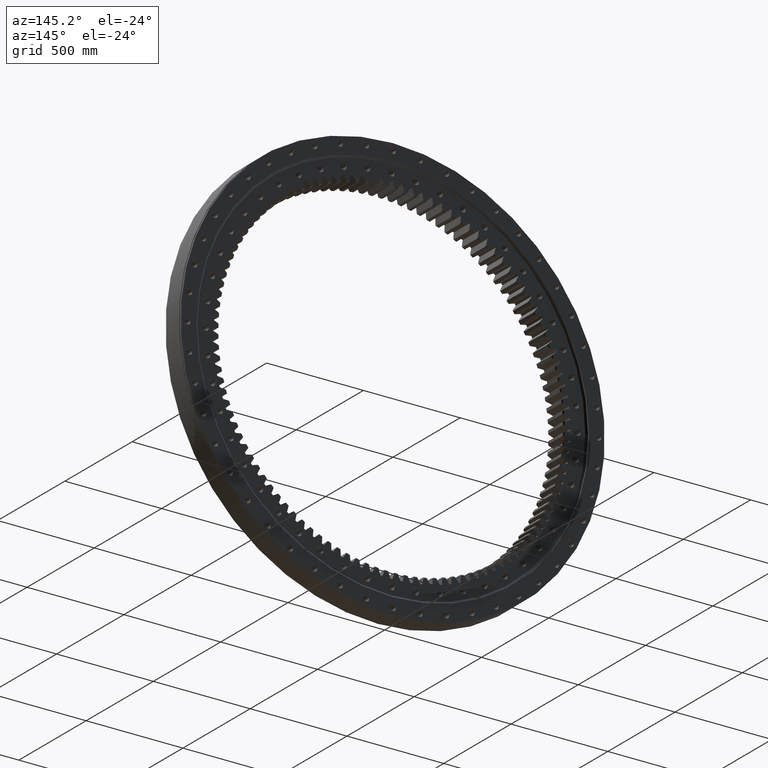
[diagram: clean part render]
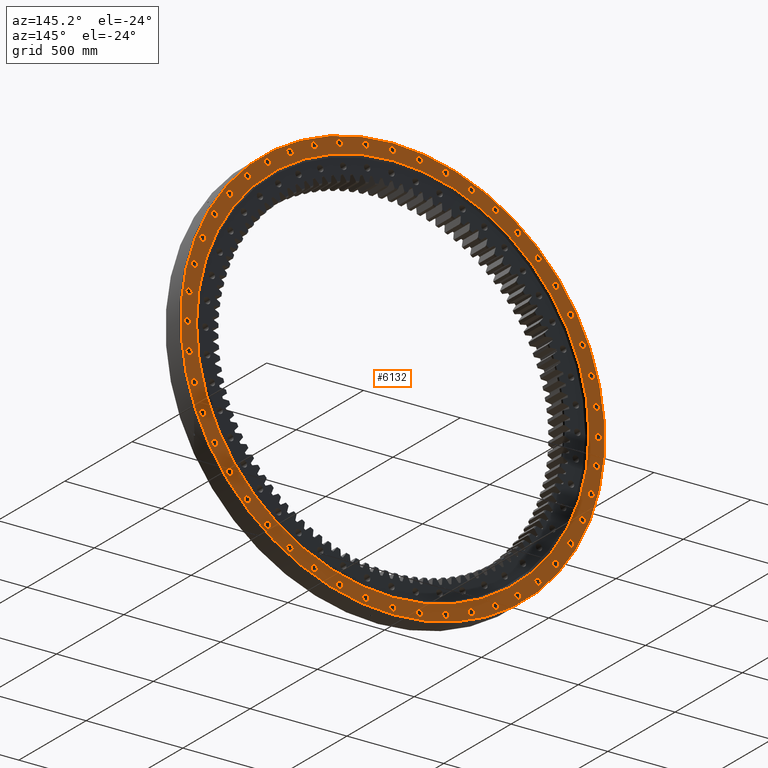
[diagram: same view with one face highlighted and labeled with its STEP entity id]
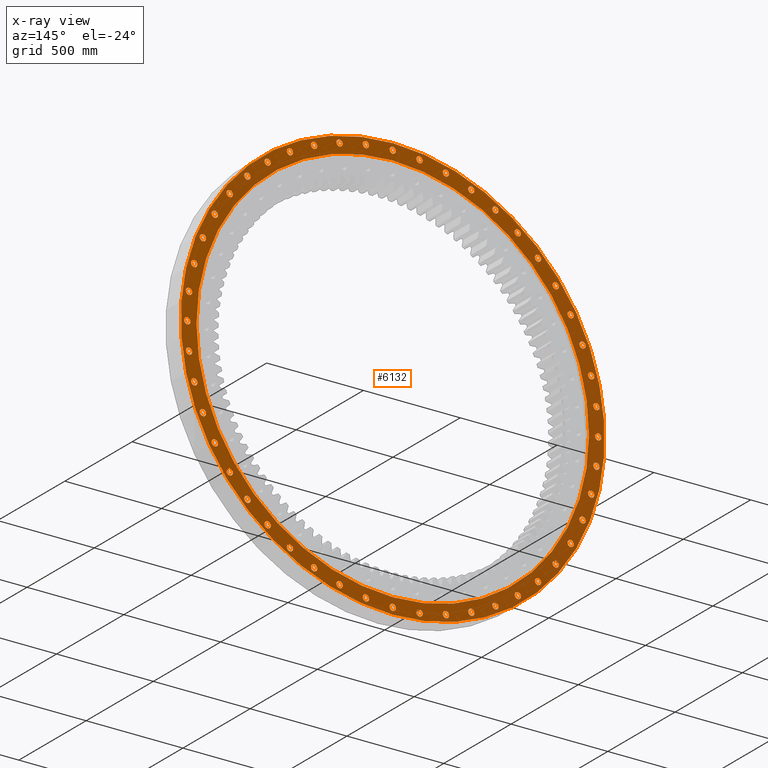
[diagram: x-ray of the same camera — body ghosted, the highlighted face saturated]
A machine part, auxiliary view. The second image highlights one B-rep face of the part: STEP entity #6132.
The next image is the same camera in x-ray: the body ghosted, the highlighted face saturated — about 0% of this face is hidden behind the body in this view.
In plain terms, the highlighted planar face has unit normal (0, -1, -0).
Its self-contained STEP definition (entity closure, byte-faithful):
#36 = EDGE_CURVE ( 'NONE', #1104, #12751, #7605, .T. ) ;
#61 = CIRCLE ( 'NONE', #30496, 16.49999999999995400 ) ;
#69 = CARTESIAN_POINT ( 'NONE',  ( 530.7500000000081900, 60.00000000000021300, -919.2859661171770500 ) ) ;
#79 = EDGE_LOOP ( 'NONE', ( #30530, #2870 ) ) ;
#123 = CIRCLE ( 'NONE', #31068, 16.49999999999996100 ) ;
#130 = FACE_BOUND ( 'NONE', #5895, .T. ) ;
#149 = DIRECTION ( 'NONE',  ( -1.173697223544192200E-016, 1.000000000000000000, 3.494217355385783800E-017 ) ) ;
#171 = DIRECTION ( 'NONE',  ( 1.173697223544192200E-016, -1.000000000000000000, -3.494217355385783800E-017 ) ) ;
#231 = CIRCLE ( 'NONE', #15740, 16.49999999999989700 ) ;
#235 = AXIS2_PLACEMENT_3D ( 'NONE', #22533, #7085, #25104 ) ;
#241 = CARTESIAN_POINT ( 'NONE',  ( -1035.918720348300200, 59.99999999999998600, 138.5535530415813200 ) ) ;
#364 = VERTEX_POINT ( 'NONE', #15655 ) ;
#380 = CARTESIAN_POINT ( 'NONE',  ( -919.2859661171833100, 59.99999999999998600, 530.7499999999973900 ) ) ;
#427 = CARTESIAN_POINT ( 'NONE',  ( 646.2002568927459800, 60.00000000000016300, 858.6445707191546700 ) ) ;
#465 = ORIENTED_EDGE ( 'NONE', *, *, #27472, .T. ) ;
#493 = VERTEX_POINT ( 'NONE', #29035 ) ;
#498 = FACE_BOUND ( 'NONE', #17326, .T. ) ;
#543 = VERTEX_POINT ( 'NONE', #16426 ) ;
#547 = CARTESIAN_POINT ( 'NONE',  ( -1.540705678021927400E-011, 60.00000000000007800, 1078.000000000000000 ) ) ;
#563 = EDGE_LOOP ( 'NONE', ( #847, #24693 ) ) ;
#572 = AXIS2_PLACEMENT_3D ( 'NONE', #3107, #21141, #5707 ) ;
#576 = DIRECTION ( 'NONE',  ( 1.173697223544192200E-016, -1.000000000000000000, -3.494217355385783800E-017 ) ) ;
#610 = CIRCLE ( 'NONE', #26390, 16.49999999999997500 ) ;
#620 = VERTEX_POINT ( 'NONE', #14071 ) ;
#626 = CIRCLE ( 'NONE', #18332, 16.50000000000004300 ) ;
#635 = CARTESIAN_POINT ( 'NONE',  ( -1025.330264605847100, 59.99999999999999300, 274.7364163763222700 ) ) ;
#725 = ORIENTED_EDGE ( 'NONE', *, *, #9000, .T. ) ;
#770 = EDGE_LOOP ( 'NONE', ( #32731, #3829 ) ) ;
#784 = DIRECTION ( 'NONE',  ( -0.3826834323650771800, 0.0000000000000000000, 0.9238795325112920700 ) ) ;
#806 = AXIS2_PLACEMENT_3D ( 'NONE', #20999, #5573, #23583 ) ;
#824 = CARTESIAN_POINT ( 'NONE',  ( -997.1981237607324100, 59.99999999999998600, 406.2184634555392800 ) ) ;
#847 = ORIENTED_EDGE ( 'NONE', *, *, #10111, .T. ) ;
#866 = CARTESIAN_POINT ( 'NONE',  ( 7.981473465168087100E-012, 60.00000000000014900, -1061.500000000000000 ) ) ;
#883 = CARTESIAN_POINT ( 'NONE',  ( 138.5535530415698100, 60.00000000000009200, 1068.918720348301800 ) ) ;
#965 = CIRCLE ( 'NONE', #15601, 16.49999999999995400 ) ;
#980 = DIRECTION ( 'NONE',  ( -0.2588190451025291800, 0.0000000000000000000, -0.9659258262890660900 ) ) ;
#984 = EDGE_LOOP ( 'NONE', ( #3131, #19427 ) ) ;
#1001 = CIRCLE ( 'NONE', #6512, 16.49999999999990400 ) ;
#1014 = ORIENTED_EDGE ( 'NONE', *, *, #30946, .T. ) ;
#1027 = AXIS2_PLACEMENT_3D ( 'NONE', #18228, #2802, #20837 ) ;
#1029 = AXIS2_PLACEMENT_3D ( 'NONE', #29102, #13689, #31707 ) ;
#1059 = DIRECTION ( 'NONE',  ( 1.173697223544192200E-016, -1.000000000000000000, -3.494217355385783800E-017 ) ) ;
#1104 = VERTEX_POINT ( 'NONE', #17360 ) ;
#1108 = CARTESIAN_POINT ( 'NONE',  ( 406.2184634555296200, 60.00000000000012800, 980.6981237607367300 ) ) ;
#1154 = CIRCLE ( 'NONE', #5538, 16.49999999999995400 ) ;
#1222 = CARTESIAN_POINT ( 'NONE',  ( 530.7499999999877200, 60.00000000000014200, 935.7859661171887600 ) ) ;
#1223 = VERTEX_POINT ( 'NONE', #5289 ) ;
#1233 = VERTEX_POINT ( 'NONE', #26028 ) ;
#1251 = VERTEX_POINT ( 'NONE', #2919 ) ;
#1256 = DIRECTION ( 'NONE',  ( 1.173697223544192200E-016, -1.000000000000000000, -3.494217355385783800E-017 ) ) ;
#1261 = AXIS2_PLACEMENT_3D ( 'NONE', #23405, #7979, #26007 ) ;
#1276 = DIRECTION ( 'NONE',  ( 0.3826834323650852900, 0.0000000000000000000, -0.9238795325112887400 ) ) ;
#1305 = FACE_BOUND ( 'NONE', #770, .T. ) ;
#1394 = ORIENTED_EDGE ( 'NONE', *, *, #32383, .T. ) ;
#1395 = CARTESIAN_POINT ( 'NONE',  ( -530.7499999999942000, 60.00000000000008500, -902.7859661171852400 ) ) ;
#1416 = ORIENTED_EDGE ( 'NONE', *, *, #20186, .T. ) ;
#1418 = CARTESIAN_POINT ( 'NONE',  ( 1052.418720348301300, 60.00000000000024900, -138.5535530415734800 ) ) ;
#1425 = ORIENTED_EDGE ( 'NONE', *, *, #9822, .T. ) ;
#1426 = DIRECTION ( 'NONE',  ( 1.173697223544192200E-016, -1.000000000000000000, -3.494217355385783800E-017 ) ) ;
#1458 = DIRECTION ( 'NONE',  ( 0.2588190451025166300, 0.0000000000000000000, -0.9659258262890693100 ) ) ;
#1469 = AXIS2_PLACEMENT_3D ( 'NONE', #3937, #21962, #6525 ) ;
#1555 = CIRCLE ( 'NONE', #3157, 16.49999999999995700 ) ;
#1608 = DIRECTION ( 'NONE',  ( 0.1305261922200450800, 0.0000000000000000000, -0.9914448613738111600 ) ) ;
#1644 = CIRCLE ( 'NONE', #20045, 16.49999999999995400 ) ;
#1654 = CIRCLE ( 'NONE', #806, 16.49999999999997200 ) ;
#1667 = AXIS2_PLACEMENT_3D ( 'NONE', #9659, #27690, #12256 ) ;
#1734 = ORIENTED_EDGE ( 'NONE', *, *, #13941, .T. ) ;
#1791 = CIRCLE ( 'NONE', #14117, 16.49999999999999300 ) ;
#1825 = EDGE_CURVE ( 'NONE', #15348, #26520, #1901, .T. ) ;
#1868 = CARTESIAN_POINT ( 'NONE',  ( 842.1445707191380700, 60.00000000000019200, 646.2002568927674700 ) ) ;
#1882 = CARTESIAN_POINT ( 'NONE',  ( 842.1445707191525100, 60.00000000000023400, -646.2002568927489400 ) ) ;
#1901 = CIRCLE ( 'NONE', #21313, 16.49999999999987200 ) ;
#1910 = AXIS2_PLACEMENT_3D ( 'NONE', #11890, #29892, #14487 ) ;
#1916 = DIRECTION ( 'NONE',  ( 1.173697223544192200E-016, -1.000000000000000000, -3.494217355385783800E-017 ) ) ;
#1969 = AXIS2_PLACEMENT_3D ( 'NONE', #16702, #1256, #19286 ) ;
#1976 = DIRECTION ( 'NONE',  ( -0.5000000000000053300, 0.0000000000000000000, -0.8660254037844357100 ) ) ;
#2128 = VERTEX_POINT ( 'NONE', #28063 ) ;
#2134 = FACE_BOUND ( 'NONE', #5083, .T. ) ;
#2139 = VERTEX_POINT ( 'NONE', #20401 ) ;
#2188 = DIRECTION ( 'NONE',  ( 1.173697223544192200E-016, -1.000000000000000000, -3.494217355385783800E-017 ) ) ;
#2196 = EDGE_CURVE ( 'NONE', #28026, #18959, #7546, .T. ) ;
#2373 = DIRECTION ( 'NONE',  ( 1.173697223544192200E-016, -1.000000000000000000, -3.494217355385783800E-017 ) ) ;
#2397 = CARTESIAN_POINT ( 'NONE',  ( -138.5535530415861300, 60.00000000000006400, 1035.918720348299800 ) ) ;
#2555 = VERTEX_POINT ( 'NONE', #3739 ) ;
#2580 = CARTESIAN_POINT ( 'NONE',  ( -406.2184634555437700, 60.00000000000003600, 997.1981237607306000 ) ) ;
#2582 = VERTEX_POINT ( 'NONE', #24477 ) ;
#2609 = EDGE_LOOP ( 'NONE', ( #28299, #27328 ) ) ;
#2610 = CARTESIAN_POINT ( 'NONE',  ( -274.7364163763269900, 60.00000000000005000, 1025.330264605845700 ) ) ;
#2658 = DIRECTION ( 'NONE',  ( 0.4999999999999922300, 0.0000000000000000000, -0.8660254037844431500 ) ) ;
#2662 = CIRCLE ( 'NONE', #13216, 16.49999999999999600 ) ;
#2695 = EDGE_CURVE ( 'NONE', #18959, #28026, #13539, .T. ) ;
#2737 = EDGE_LOOP ( 'NONE', ( #24352, #3592 ) ) ;
#2738 = CARTESIAN_POINT ( 'NONE',  ( -1.540445398069900600E-011, 60.00000000000007800, 1045.000000000000200 ) ) ;
#2741 = EDGE_CURVE ( 'NONE', #19180, #27418, #5874, .T. ) ;
#2748 = CIRCLE ( 'NONE', #30799, 16.49999999999999300 ) ;
#2802 = DIRECTION ( 'NONE',  ( 1.173697223544192200E-016, -1.000000000000000000, -3.494217355385783800E-017 ) ) ;
#2843 = DIRECTION ( 'NONE',  ( 1.173697223544192200E-016, -1.000000000000000000, -3.494217355385783800E-017 ) ) ;
#2870 = ORIENTED_EDGE ( 'NONE', *, *, #21987, .T. ) ;
#2919 = CARTESIAN_POINT ( 'NONE',  ( -646.2002568927591700, 60.00000000000001400, 825.6445707191445500 ) ) ;
#2921 = FACE_BOUND ( 'NONE', #17126, .T. ) ;
#2922 = EDGE_CURVE ( 'NONE', #9749, #1233, #20780, .T. ) ;
#2930 = CARTESIAN_POINT ( 'NONE',  ( 646.2002568927645100, 60.00000000000022000, -825.6445707191403500 ) ) ;
#2932 = CARTESIAN_POINT ( 'NONE',  ( 530.7500000000081900, 60.00000000000021300, -902.7859661171770500 ) ) ;
#2977 = DIRECTION ( 'NONE',  ( -0.8660254037844310500, 0.0000000000000000000, 0.5000000000000132100 ) ) ;
#2982 = VERTEX_POINT ( 'NONE', #23530 ) ;
#2985 = CARTESIAN_POINT ( 'NONE',  ( 530.7499999999877200, 60.00000000000014200, 919.2859661171888800 ) ) ;
#3042 = ORIENTED_EDGE ( 'NONE', *, *, #25823, .T. ) ;
#3107 = CARTESIAN_POINT ( 'NONE',  ( -842.1445707191422800, 60.00000000000004300, -646.2002568927620100 ) ) ;
#3131 = ORIENTED_EDGE ( 'NONE', *, *, #21772, .T. ) ;
#3146 = AXIS2_PLACEMENT_3D ( 'NONE', #10066, #28076, #12651 ) ;
#3157 = AXIS2_PLACEMENT_3D ( 'NONE', #19213, #3793, #21822 ) ;
#3162 = ORIENTED_EDGE ( 'NONE', *, *, #12030, .T. ) ;
#3219 = DIRECTION ( 'NONE',  ( -0.9659258262890652000, 0.0000000000000000000, 0.2588190451025323400 ) ) ;
#3221 = CARTESIAN_POINT ( 'NONE',  ( 138.5535530415930100, 60.00000000000016300, -1052.418720348298800 ) ) ;
#3294 = CARTESIAN_POINT ( 'NONE',  ( 138.5535530415930100, 60.00000000000016300, -1035.918720348298800 ) ) ;
#3309 = CARTESIAN_POINT ( 'NONE',  ( 825.6445707191525100, 60.00000000000023400, -646.2002568927489400 ) ) ;
#3323 = VERTEX_POINT ( 'NONE', #19387 ) ;
#3328 = ORIENTED_EDGE ( 'NONE', *, *, #24713, .T. ) ;
#3335 = EDGE_CURVE ( 'NONE', #21991, #3340, #22383, .T. ) ;
#3340 = VERTEX_POINT ( 'NONE', #27300 ) ;
#3346 = CARTESIAN_POINT ( 'NONE',  ( -1052.418720348299300, 60.00000000000000000, -138.5535530415898200 ) ) ;
#3391 = AXIS2_PLACEMENT_3D ( 'NONE', #32855, #17397, #1976 ) ;
#3429 = CARTESIAN_POINT ( 'NONE',  ( -964.1981237607292300, 60.00000000000001400, -406.2184634555472400 ) ) ;
#3433 = ORIENTED_EDGE ( 'NONE', *, *, #31080, .T. ) ;
#3466 = CARTESIAN_POINT ( 'NONE',  ( 902.7859661171752400, 60.00000000000020600, 530.7500000000113700 ) ) ;
#3468 = DIRECTION ( 'NONE',  ( -7.038473828917508000E-015, 0.0000000000000000000, -1.000000000000000000 ) ) ;
#3525 = VERTEX_POINT ( 'NONE', #33231 ) ;
#3593 = VERTEX_POINT ( 'NONE', #31071 ) ;
#3592 = ORIENTED_EDGE ( 'NONE', *, *, #13834, .T. ) ;
#3599 = AXIS2_PLACEMENT_3D ( 'NONE', #6362, #24389, #8960 ) ;
#3610 = EDGE_CURVE ( 'NONE', #14457, #24357, #10665, .T. ) ;
#3631 = EDGE_LOOP ( 'NONE', ( #17427, #22513 ) ) ;
#3640 = DIRECTION ( 'NONE',  ( 1.173697223544192200E-016, -1.000000000000000000, -3.494217355385783800E-017 ) ) ;
#3650 = CIRCLE ( 'NONE', #15019, 16.49999999999996400 ) ;
#3702 = DIRECTION ( 'NONE',  ( 0.3826834323650910600, 0.0000000000000000000, 0.9238795325112864100 ) ) ;
#3739 = CARTESIAN_POINT ( 'NONE',  ( 997.1981237607352600, 60.00000000000024900, -406.2184634555329700 ) ) ;
#3740 = FACE_BOUND ( 'NONE', #25571, .T. ) ;
#3757 = EDGE_CURVE ( 'NONE', #22888, #22343, #32415, .T. ) ;
#3793 = DIRECTION ( 'NONE',  ( 1.173697223544192200E-016, -1.000000000000000000, -3.494217355385783800E-017 ) ) ;
#3829 = ORIENTED_EDGE ( 'NONE', *, *, #26847, .T. ) ;
#3846 = AXIS2_PLACEMENT_3D ( 'NONE', #20843, #5394, #23412 ) ;
#3869 = DIRECTION ( 'NONE',  ( 1.173697223544192200E-016, -1.000000000000000000, -3.494217355385783800E-017 ) ) ;
#3896 = EDGE_LOOP ( 'NONE', ( #27609, #4798 ) ) ;
#3937 = CARTESIAN_POINT ( 'NONE',  ( -274.7364163763269900, 60.00000000000005000, 1025.330264605845700 ) ) ;
#4038 = DIRECTION ( 'NONE',  ( 0.9914448613738097200, 0.0000000000000000000, -0.1305261922200566800 ) ) ;
#4053 = CARTESIAN_POINT ( 'NONE',  ( -274.7364163763269900, 60.00000000000005000, 1008.830264605845700 ) ) ;
#4060 = AXIS2_PLACEMENT_3D ( 'NONE', #27749, #12324, #30321 ) ;
#4076 = DIRECTION ( 'NONE',  ( 1.173697223544192200E-016, -1.000000000000000000, -3.494217355385783800E-017 ) ) ;
#4081 = AXIS2_PLACEMENT_3D ( 'NONE', #9020, #27051, #11625 ) ;
#4136 = VERTEX_POINT ( 'NONE', #10987 ) ;
#4138 = ORIENTED_EDGE ( 'NONE', *, *, #19856, .T. ) ;
#4166 = VERTEX_POINT ( 'NONE', #824 ) ;
#4215 = EDGE_CURVE ( 'NONE', #18355, #2555, #13436, .T. ) ;
#4227 = ORIENTED_EDGE ( 'NONE', *, *, #30095, .T. ) ;
#4356 = DIRECTION ( 'NONE',  ( 1.173697223544192200E-016, -1.000000000000000000, -3.494217355385783800E-017 ) ) ;
#4415 = EDGE_CURVE ( 'NONE', #32686, #9763, #123, .T. ) ;
#4435 = CARTESIAN_POINT ( 'NONE',  ( -1.540797271421458900E-011, 60.00000000000007800, 1061.500000000000000 ) ) ;
#4451 = CARTESIAN_POINT ( 'NONE',  ( 138.5535530415698100, 60.00000000000009200, 1052.418720348301800 ) ) ;
#4480 = DIRECTION ( 'NONE',  ( 0.7933533402912386100, 0.0000000000000000000, 0.6087614290087161000 ) ) ;
#4492 = DIRECTION ( 'NONE',  ( 0.7933533402912329400, 0.0000000000000000000, -0.6087614290087235400 ) ) ;
#4512 = AXIS2_PLACEMENT_3D ( 'NONE', #19064, #3640, #21681 ) ;
#4546 = CARTESIAN_POINT ( 'NONE',  ( 919.2859661171751200, 60.00000000000020600, 530.7500000000113700 ) ) ;
#4586 = FACE_BOUND ( 'NONE', #24259, .T. ) ;
#4624 = DIRECTION ( 'NONE',  ( 1.173697223544192200E-016, -1.000000000000000000, -3.494217355385783800E-017 ) ) ;
#4629 = EDGE_LOOP ( 'NONE', ( #30880, #16654 ) ) ;
#4640 = EDGE_CURVE ( 'NONE', #2128, #7275, #21885, .T. ) ;
#4670 = CARTESIAN_POINT ( 'NONE',  ( -734.0938482295159700, 60.00000000000005700, -750.5938482295246100 ) ) ;
#4752 = AXIS2_PLACEMENT_3D ( 'NONE', #16025, #576, #18592 ) ;
#4768 = EDGE_CURVE ( 'NONE', #3323, #27220, #18617, .T. ) ;
#4774 = CARTESIAN_POINT ( 'NONE',  ( -980.6981237607292300, 60.00000000000001400, -406.2184634555472400 ) ) ;
#4798 = ORIENTED_EDGE ( 'NONE', *, *, #10624, .T. ) ;
#4825 = VERTEX_POINT ( 'NONE', #18468 ) ;
#4960 = CIRCLE ( 'NONE', #9595, 16.50000000000003200 ) ;
#5047 = CIRCLE ( 'NONE', #17057, 16.49999999999996100 ) ;
#5083 = EDGE_LOOP ( 'NONE', ( #20021, #18229 ) ) ;
#5122 = CIRCLE ( 'NONE', #23751, 16.50000000000000700 ) ;
#5134 = CARTESIAN_POINT ( 'NONE',  ( -530.7499999999942000, 60.00000000000008500, -935.7859661171851300 ) ) ;
#5189 = CIRCLE ( 'NONE', #25080, 16.49999999999996100 ) ;
#5201 = DIRECTION ( 'NONE',  ( -0.2588190451025103600, 0.0000000000000000000, 0.9659258262890709800 ) ) ;
#5202 = VERTEX_POINT ( 'NONE', #3466 ) ;
#5289 = CARTESIAN_POINT ( 'NONE',  ( -750.5938482295220000, 60.00000000000000000, 767.0938482295184700 ) ) ;
#5346 = FACE_BOUND ( 'NONE', #13047, .T. ) ;
#5370 = EDGE_CURVE ( 'NONE', #25206, #15485, #32424, .T. ) ;
#5394 = DIRECTION ( 'NONE',  ( 1.173697223544192200E-016, -1.000000000000000000, -3.494217355385783800E-017 ) ) ;
#5395 = DIRECTION ( 'NONE',  ( 1.173697223544192200E-016, -1.000000000000000000, -3.494217355385783800E-017 ) ) ;
#5429 = VERTEX_POINT ( 'NONE', #5134 ) ;
#5538 = AXIS2_PLACEMENT_3D ( 'NONE', #10145, #28161, #12738 ) ;
#5556 = AXIS2_PLACEMENT_3D ( 'NONE', #1108, #19125, #3702 ) ;
#5557 = CIRCLE ( 'NONE', #3599, 1095.000000000000000 ) ;
#5565 = CIRCLE ( 'NONE', #10173, 16.49999999999990400 ) ;
#5573 = DIRECTION ( 'NONE',  ( 1.173697223544192200E-016, -1.000000000000000000, -3.494217355385783800E-017 ) ) ;
#5587 = DIRECTION ( 'NONE',  ( 0.5000000000000001100, 0.0000000000000000000, 0.8660254037844384900 ) ) ;
#5649 = CARTESIAN_POINT ( 'NONE',  ( -274.7364163763186900, 60.00000000000011400, -1025.330264605848000 ) ) ;
#5659 = CIRCLE ( 'NONE', #15044, 16.49999999999996800 ) ;
#5665 = CIRCLE ( 'NONE', #1469, 16.49999999999989000 ) ;
#5666 = AXIS2_PLACEMENT_3D ( 'NONE', #17609, #2188, #20215 ) ;
#5702 = CARTESIAN_POINT ( 'NONE',  ( -1041.830264605844800, 60.00000000000000700, -274.7364163763305700 ) ) ;
#5707 = DIRECTION ( 'NONE',  ( -0.7933533402912386100, 0.0000000000000000000, -0.6087614290087161000 ) ) ;
#5729 = EDGE_CURVE ( 'NONE', #33136, #25779, #23509, .T. ) ;
#5738 = CARTESIAN_POINT ( 'NONE',  ( 1035.918720348298200, 60.00000000000023400, 138.5535530415966700 ) ) ;
#5750 = FACE_BOUND ( 'NONE', #26832, .T. ) ;
#5826 = CARTESIAN_POINT ( 'NONE',  ( 750.5938482295272300, 60.00000000000023400, -750.5938482295133600 ) ) ;
#5833 = DIRECTION ( 'NONE',  ( 0.1305261922200450800, 0.0000000000000000000, -0.9914448613738111600 ) ) ;
#5874 = CIRCLE ( 'NONE', #6669, 1013.698750000000100 ) ;
#5895 = EDGE_LOOP ( 'NONE', ( #1734, #17400 ) ) ;
#5899 = CARTESIAN_POINT ( 'NONE',  ( 1025.330264605849200, 60.00000000000024200, -274.7364163763151600 ) ) ;
#5912 = AXIS2_PLACEMENT_3D ( 'NONE', #19779, #4356, #22384 ) ;
#5953 = DIRECTION ( 'NONE',  ( -0.9914448613738113800, 0.0000000000000000000, -0.1305261922200434400 ) ) ;
#5955 = CIRCLE ( 'NONE', #1029, 16.49999999999993200 ) ;
#5956 = DIRECTION ( 'NONE',  ( 1.173697223544192200E-016, -1.000000000000000000, -3.494217355385783800E-017 ) ) ;
#5961 = CIRCLE ( 'NONE', #19892, 16.49999999999991100 ) ;
#6028 = EDGE_CURVE ( 'NONE', #21557, #24960, #29142, .T. ) ;
#6068 = CARTESIAN_POINT ( 'NONE',  ( 1061.500000000000000, 60.00000000000024200, 1.169681962010457000E-011 ) ) ;
#6104 = ORIENTED_EDGE ( 'NONE', *, *, #6149, .T. ) ;
#6126 = ORIENTED_EDGE ( 'NONE', *, *, #2922, .T. ) ;
#6132 = ADVANCED_FACE ( 'NONE', ( #25924, #19891, #13023, #130, #19051, #12246, #5346, #31968, #25130, #18244, #11426, #4586, #31143, #24303, #17443, #10606, #3740, #30356, #23481, #16637, #9812, #2921, #29534, #22714, #15834, #8994, #2134, #28733, #21890, #15056, #8158, #1305, #27931, #21071, #14236, #7392, #498, #27134, #20278, #13408, #6570, #33166, #26307, #19459, #12619, #5750, #32359, #25520, #18624, #11816 ), #25246, .F. ) ;
#6149 = EDGE_CURVE ( 'NONE', #30111, #11380, #24707, .T. ) ;
#6295 = CARTESIAN_POINT ( 'NONE',  ( -1045.000000000000200, 59.99999999999999300, -4.283049430454910900E-012 ) ) ;
#6343 = CARTESIAN_POINT ( 'NONE',  ( 274.7364163763115800, 60.00000000000011400, 1008.830264605850100 ) ) ;
#6362 = CARTESIAN_POINT ( 'NONE',  ( -7.042183341265165400E-015, 60.00000000000010700, 2.037406404450202600E-015 ) ) ;
#6370 = CARTESIAN_POINT ( 'NONE',  ( 274.7364163763115800, 60.00000000000011400, 1025.330264605850100 ) ) ;
#6511 = AXIS2_PLACEMENT_3D ( 'NONE', #9601, #27630, #12196 ) ;
#6512 = AXIS2_PLACEMENT_3D ( 'NONE', #12870, #30877, #15471 ) ;
#6519 = VERTEX_POINT ( 'NONE', #883 ) ;
#6525 = DIRECTION ( 'NONE',  ( -0.2588190451025103600, 0.0000000000000000000, 0.9659258262890709800 ) ) ;
#6570 = FACE_BOUND ( 'NONE', #9701, .T. ) ;
#6669 = AXIS2_PLACEMENT_3D ( 'NONE', #9834, #27846, #12436 ) ;
#6699 = DIRECTION ( 'NONE',  ( 1.173697223544192200E-016, -1.000000000000000000, -3.494217355385783800E-017 ) ) ;
#6719 = AXIS2_PLACEMENT_3D ( 'NONE', #25904, #10479, #28497 ) ;
#6729 = ORIENTED_EDGE ( 'NONE', *, *, #8264, .T. ) ;
#6762 = EDGE_CURVE ( 'NONE', #620, #12163, #10962, .T. ) ;
#6793 = EDGE_LOOP ( 'NONE', ( #465, #12010 ) ) ;
#6797 = CARTESIAN_POINT ( 'NONE',  ( 1068.918720348298200, 60.00000000000023400, 138.5535530415966700 ) ) ;
#6873 = CARTESIAN_POINT ( 'NONE',  ( 750.5938482295272300, 60.00000000000023400, -750.5938482295133600 ) ) ;
#6898 = AXIS2_PLACEMENT_3D ( 'NONE', #13045, #31052, #15642 ) ;
#6974 = EDGE_CURVE ( 'NONE', #14726, #4166, #61, .T. ) ;
#7018 = DIRECTION ( 'NONE',  ( 5.551115123128398300E-017, 0.0000000000000000000, 1.000000000000000000 ) ) ;
#7030 = DIRECTION ( 'NONE',  ( 0.1305261922200533800, 0.0000000000000000000, 0.9914448613738101600 ) ) ;
#7033 = DIRECTION ( 'NONE',  ( 1.173697223544192200E-016, -1.000000000000000000, -3.494217355385783800E-017 ) ) ;
#7041 = CARTESIAN_POINT ( 'NONE',  ( 1025.330264605849200, 60.00000000000024200, -274.7364163763151600 ) ) ;
#7053 = VERTEX_POINT ( 'NONE', #19760 ) ;
#7085 = DIRECTION ( 'NONE',  ( 1.173697223544192200E-016, -1.000000000000000000, -3.494217355385783800E-017 ) ) ;
#7100 = DIRECTION ( 'NONE',  ( 1.173697223544192200E-016, -1.000000000000000000, -3.494217355385783800E-017 ) ) ;
#7112 = AXIS2_PLACEMENT_3D ( 'NONE', #22487, #7033, #25054 ) ;
#7133 = DIRECTION ( 'NONE',  ( 0.8660254037844384900, 0.0000000000000000000, 0.5000000000000001100 ) ) ;
#7266 = CARTESIAN_POINT ( 'NONE',  ( 646.2002568927645100, 60.00000000000022000, -842.1445707191402300 ) ) ;
#7270 = CARTESIAN_POINT ( 'NONE',  ( 1041.830264605849200, 60.00000000000024200, -274.7364163763151600 ) ) ;
#7275 = VERTEX_POINT ( 'NONE', #2930 ) ;
#7355 = CARTESIAN_POINT ( 'NONE',  ( 1035.918720348301300, 60.00000000000024900, -138.5535530415734800 ) ) ;
#7364 = DIRECTION ( 'NONE',  ( -0.9238795325112899600, 0.0000000000000000000, -0.3826834323650824000 ) ) ;
#7369 = ORIENTED_EDGE ( 'NONE', *, *, #17228, .T. ) ;
#7392 = FACE_BOUND ( 'NONE', #15730, .T. ) ;
#7404 = ORIENTED_EDGE ( 'NONE', *, *, #12233, .T. ) ;
#7448 = DIRECTION ( 'NONE',  ( 1.173697223544192200E-016, -1.000000000000000000, -3.494217355385783800E-017 ) ) ;
#7508 = EDGE_CURVE ( 'NONE', #31255, #19832, #29870, .T. ) ;
#7546 = CIRCLE ( 'NONE', #1027, 16.49999999999995700 ) ;
#7591 = CIRCLE ( 'NONE', #32978, 16.50000000000003900 ) ;
#7605 = CIRCLE ( 'NONE', #23660, 16.49999999999996100 ) ;
#7617 = AXIS2_PLACEMENT_3D ( 'NONE', #3221, #21263, #5833 ) ;
#7665 = CIRCLE ( 'NONE', #6898, 16.49999999999999300 ) ;
#7708 = CIRCLE ( 'NONE', #25992, 16.49999999999995700 ) ;
#7768 = ORIENTED_EDGE ( 'NONE', *, *, #10411, .T. ) ;
#7817 = CARTESIAN_POINT ( 'NONE',  ( 964.1981237607353700, 60.00000000000024900, -406.2184634555329700 ) ) ;
#7836 = AXIS2_PLACEMENT_3D ( 'NONE', #11421, #29428, #14007 ) ;
#7880 = ORIENTED_EDGE ( 'NONE', *, *, #14615, .T. ) ;
#7893 = EDGE_CURVE ( 'NONE', #21522, #3593, #32267, .T. ) ;
#7929 = CIRCLE ( 'NONE', #22452, 16.49999999999986900 ) ;
#7979 = DIRECTION ( 'NONE',  ( 1.173697223544192200E-016, -1.000000000000000000, -3.494217355385783800E-017 ) ) ;
#8060 = AXIS2_PLACEMENT_3D ( 'NONE', #16869, #1426, #19461 ) ;
#8098 = CIRCLE ( 'NONE', #5912, 16.49999999999996400 ) ;
#8158 = FACE_BOUND ( 'NONE', #3631, .T. ) ;
#8168 = AXIS2_PLACEMENT_3D ( 'NONE', #15189, #33187, #17749 ) ;
#8203 = DIRECTION ( 'NONE',  ( 1.173697223544192200E-016, -1.000000000000000000, -3.494217355385783800E-017 ) ) ;
#8229 = DIRECTION ( 'NONE',  ( -0.2588190451025291800, 0.0000000000000000000, -0.9659258262890660900 ) ) ;
#8242 = ORIENTED_EDGE ( 'NONE', *, *, #8565, .T. ) ;
#8264 = EDGE_CURVE ( 'NONE', #13236, #22858, #9688, .T. ) ;
#8322 = VERTEX_POINT ( 'NONE', #1395 ) ;
#8388 = DIRECTION ( 'NONE',  ( 1.173697223544192200E-016, -1.000000000000000000, -3.494217355385783800E-017 ) ) ;
#8407 = CIRCLE ( 'NONE', #21157, 16.49999999999998600 ) ;
#8414 = DIRECTION ( 'NONE',  ( 0.7071067811865441300, 0.0000000000000000000, -0.7071067811865507900 ) ) ;
#8484 = DIRECTION ( 'NONE',  ( 0.9659258262890668700, 0.0000000000000000000, -0.2588190451025260700 ) ) ;
#8501 = CIRCLE ( 'NONE', #17351, 16.49999999999991800 ) ;
#8506 = EDGE_LOOP ( 'NONE', ( #22219, #8662 ) ) ;
#8528 = AXIS2_PLACEMENT_3D ( 'NONE', #32172, #16726, #1276 ) ;
#8553 = CARTESIAN_POINT ( 'NONE',  ( 919.2859661171871700, 60.00000000000024900, -530.7499999999909100 ) ) ;
#8565 = EDGE_CURVE ( 'NONE', #2139, #10291, #28988, .T. ) ;
#8659 = DIRECTION ( 'NONE',  ( 1.173697223544192200E-016, -1.000000000000000000, -3.494217355385783800E-017 ) ) ;
#8661 = DIRECTION ( 'NONE',  ( 1.000000000000000000, 0.0000000000000000000, -3.546992490074347800E-015 ) ) ;
#8662 = ORIENTED_EDGE ( 'NONE', *, *, #15329, .T. ) ;
#8689 = CIRCLE ( 'NONE', #13670, 16.49999999999995400 ) ;
#8759 = ORIENTED_EDGE ( 'NONE', *, *, #6762, .T. ) ;
#8775 = CIRCLE ( 'NONE', #26550, 16.49999999999989000 ) ;
#8794 = VERTEX_POINT ( 'NONE', #6343 ) ;
#8800 = CARTESIAN_POINT ( 'NONE',  ( 1041.830264605842800, 60.00000000000022700, 274.7364163763377300 ) ) ;
#8808 = EDGE_CURVE ( 'NONE', #12303, #3525, #30993, .T. ) ;
#8845 = VERTEX_POINT ( 'NONE', #29774 ) ;
#8885 = VERTEX_POINT ( 'NONE', #6797 ) ;
#8960 = DIRECTION ( 'NONE',  ( 5.551115123125782700E-017, -3.802133645976563300E-017, 1.000000000000000000 ) ) ;
#8980 = DIRECTION ( 'NONE',  ( 0.2588190451025229600, 0.0000000000000000000, 0.9659258262890676500 ) ) ;
#8994 = FACE_BOUND ( 'NONE', #30974, .T. ) ;
#9000 = EDGE_CURVE ( 'NONE', #3525, #12303, #24542, .T. ) ;
#9020 = CARTESIAN_POINT ( 'NONE',  ( -7.042183341265165400E-015, 60.00000000000010700, 2.096530413231473700E-015 ) ) ;
#9128 = DIRECTION ( 'NONE',  ( 1.173697223544192200E-016, -1.000000000000000000, -3.494217355385783800E-017 ) ) ;
#9204 = CIRCLE ( 'NONE', #30450, 16.49999999999997500 ) ;
#9237 = CIRCLE ( 'NONE', #572, 16.49999999999998600 ) ;
#9261 = EDGE_LOOP ( 'NONE', ( #4138, #13542 ) ) ;
#9358 = CARTESIAN_POINT ( 'NONE',  ( 406.2184634555510500, 60.00000000000019900, -964.1981237607275300 ) ) ;
#9482 = DIRECTION ( 'NONE',  ( 0.7071067811865441300, 0.0000000000000000000, -0.7071067811865507900 ) ) ;
#9504 = CARTESIAN_POINT ( 'NONE',  ( 1078.000000000000000, 60.00000000000024200, 1.163829424401834200E-011 ) ) ;
#9559 = EDGE_CURVE ( 'NONE', #10291, #2139, #5557, .T. ) ;
#9595 = AXIS2_PLACEMENT_3D ( 'NONE', #17799, #2373, #20398 ) ;
#9597 = CIRCLE ( 'NONE', #14485, 16.49999999999993200 ) ;
#9601 = CARTESIAN_POINT ( 'NONE',  ( -842.1445707191478500, 60.00000000000000000, 646.2002568927553100 ) ) ;
#9638 = DIRECTION ( 'NONE',  ( 0.9659258262890668700, 0.0000000000000000000, -0.2588190451025260700 ) ) ;
#9659 = CARTESIAN_POINT ( 'NONE',  ( -1061.500000000000000, 59.99999999999999300, -4.280211676914133700E-012 ) ) ;
#9688 = CIRCLE ( 'NONE', #8528, 16.49999999999997200 ) ;
#9689 = AXIS2_PLACEMENT_3D ( 'NONE', #25443, #10014, #28027 ) ;
#9701 = EDGE_LOOP ( 'NONE', ( #25428, #7369 ) ) ;
#9708 = CIRCLE ( 'NONE', #16805, 16.50000000000003200 ) ;
#9749 = VERTEX_POINT ( 'NONE', #25179 ) ;
#9763 = VERTEX_POINT ( 'NONE', #7270 ) ;
#9765 = EDGE_CURVE ( 'NONE', #2555, #18355, #7591, .T. ) ;
#9812 = FACE_BOUND ( 'NONE', #12099, .T. ) ;
#9813 = DIRECTION ( 'NONE',  ( 1.173697223544192200E-016, -1.000000000000000000, -3.494217355385783800E-017 ) ) ;
#9822 = EDGE_CURVE ( 'NONE', #4136, #30303, #32563, .T. ) ;
#9829 = EDGE_LOOP ( 'NONE', ( #725, #10207 ) ) ;
#9834 = CARTESIAN_POINT ( 'NONE',  ( -7.042183341265165400E-015, 60.00000000000010700, 2.096530413231473700E-015 ) ) ;
#9852 = DIRECTION ( 'NONE',  ( 0.6087614290087161000, 0.0000000000000000000, -0.7933533402912386100 ) ) ;
#9889 = AXIS2_PLACEMENT_3D ( 'NONE', #15373, #33377, #17946 ) ;
#9924 = DIRECTION ( 'NONE',  ( 5.551115123125782700E-017, -3.494217355385783100E-017, 1.000000000000000000 ) ) ;
#10007 = CARTESIAN_POINT ( 'NONE',  ( -825.6445707191422800, 60.00000000000004300, -646.2002568927620100 ) ) ;
#10014 = DIRECTION ( 'NONE',  ( 1.173697223544192200E-016, -1.000000000000000000, -3.494217355385783800E-017 ) ) ;
#10066 = CARTESIAN_POINT ( 'NONE',  ( -138.5535530415771500, 60.00000000000013500, -1052.418720348300900 ) ) ;
#10111 = EDGE_CURVE ( 'NONE', #12243, #364, #9237, .T. ) ;
#10145 = CARTESIAN_POINT ( 'NONE',  ( -406.2184634555363800, 60.00000000000009900, -980.6981237607337800 ) ) ;
#10173 = AXIS2_PLACEMENT_3D ( 'NONE', #25253, #9813, #27828 ) ;
#10207 = ORIENTED_EDGE ( 'NONE', *, *, #8808, .T. ) ;
#10215 = CARTESIAN_POINT ( 'NONE',  ( -138.5535530415771500, 60.00000000000013500, -1068.918720348300900 ) ) ;
#10291 = VERTEX_POINT ( 'NONE', #29695 ) ;
#10297 = VERTEX_POINT ( 'NONE', #19326 ) ;
#10331 = VERTEX_POINT ( 'NONE', #32398 ) ;
#10353 = CARTESIAN_POINT ( 'NONE',  ( 1008.830264605849200, 60.00000000000024200, -274.7364163763151600 ) ) ;
#10409 = DIRECTION ( 'NONE',  ( 1.173697223544192200E-016, -1.000000000000000000, -3.494217355385783800E-017 ) ) ;
#10411 = EDGE_CURVE ( 'NONE', #11380, #30111, #25334, .T. ) ;
#10414 = EDGE_CURVE ( 'NONE', #5429, #8322, #18435, .T. ) ;
#10479 = DIRECTION ( 'NONE',  ( 1.173697223544192200E-016, -1.000000000000000000, -3.494217355385783800E-017 ) ) ;
#10606 = FACE_BOUND ( 'NONE', #25610, .T. ) ;
#10624 = EDGE_CURVE ( 'NONE', #28158, #24194, #5955, .T. ) ;
#10661 = CARTESIAN_POINT ( 'NONE',  ( 919.2859661171871700, 60.00000000000024900, -530.7499999999909100 ) ) ;
#10665 = CIRCLE ( 'NONE', #1261, 16.49999999999995000 ) ;
#10694 = EDGE_CURVE ( 'NONE', #4825, #8794, #18040, .T. ) ;
#10716 = AXIS2_PLACEMENT_3D ( 'NONE', #19285, #3869, #21892 ) ;
#10832 = CARTESIAN_POINT ( 'NONE',  ( -919.2859661171788700, 60.00000000000002800, -530.7500000000048900 ) ) ;
#10962 = CIRCLE ( 'NONE', #11515, 16.49999999999999600 ) ;
#10987 = CARTESIAN_POINT ( 'NONE',  ( -1041.830264605847100, 59.99999999999999300, 274.7364163763222700 ) ) ;
#11157 = DIRECTION ( 'NONE',  ( 0.8660254037844357100, 0.0000000000000000000, -0.5000000000000053300 ) ) ;
#11248 = CARTESIAN_POINT ( 'NONE',  ( -1052.418720348300200, 59.99999999999998600, 138.5535530415813200 ) ) ;
#11296 = EDGE_CURVE ( 'NONE', #27820, #24316, #23242, .T. ) ;
#11380 = VERTEX_POINT ( 'NONE', #6295 ) ;
#11421 = CARTESIAN_POINT ( 'NONE',  ( -1052.418720348300200, 59.99999999999998600, 138.5535530415813200 ) ) ;
#11426 = FACE_BOUND ( 'NONE', #22891, .T. ) ;
#11515 = AXIS2_PLACEMENT_3D ( 'NONE', #15100, #33094, #17652 ) ;
#11625 = DIRECTION ( 'NONE',  ( 5.551115123125782700E-017, -3.422562128989123800E-017, 1.000000000000000000 ) ) ;
#11671 = CIRCLE ( 'NONE', #4752, 16.49999999999987900 ) ;
#11742 = EDGE_LOOP ( 'NONE', ( #23377, #1394 ) ) ;
#11771 = CARTESIAN_POINT ( 'NONE',  ( -980.6981237607325300, 59.99999999999998600, 406.2184634555392800 ) ) ;
#11777 = DIRECTION ( 'NONE',  ( 1.173697223544192200E-016, -1.000000000000000000, -3.494217355385783800E-017 ) ) ;
#11792 = CIRCLE ( 'NONE', #4060, 16.50000000000001400 ) ;
#11802 = ORIENTED_EDGE ( 'NONE', *, *, #32817, .T. ) ;
#11816 = FACE_BOUND ( 'NONE', #11742, .T. ) ;
#11838 = ORIENTED_EDGE ( 'NONE', *, *, #7508, .T. ) ;
#11862 = AXIS2_PLACEMENT_3D ( 'NONE', #3346, #21383, #5953 ) ;
#11881 = VERTEX_POINT ( 'NONE', #16155 ) ;
#11890 = CARTESIAN_POINT ( 'NONE',  ( 750.5938482295107400, 60.00000000000017800, 750.5938482295299500 ) ) ;
#11963 = DIRECTION ( 'NONE',  ( 1.173697223544192200E-016, -1.000000000000000000, -3.494217355385783800E-017 ) ) ;
#11983 = DIRECTION ( 'NONE',  ( 1.173697223544192200E-016, -1.000000000000000000, -3.494217355385783800E-017 ) ) ;
#12010 = ORIENTED_EDGE ( 'NONE', *, *, #29812, .T. ) ;
#12030 = EDGE_CURVE ( 'NONE', #2582, #17142, #231, .T. ) ;
#12080 = VERTEX_POINT ( 'NONE', #32412 ) ;
#12099 = EDGE_LOOP ( 'NONE', ( #11838, #25073 ) ) ;
#12116 = AXIS2_PLACEMENT_3D ( 'NONE', #16497, #1059, #19072 ) ;
#12163 = VERTEX_POINT ( 'NONE', #32752 ) ;
#12196 = DIRECTION ( 'NONE',  ( -0.7933533402912272800, 0.0000000000000000000, 0.6087614290087309800 ) ) ;
#12219 = ORIENTED_EDGE ( 'NONE', *, *, #31581, .T. ) ;
#12233 = EDGE_CURVE ( 'NONE', #493, #10331, #21183, .T. ) ;
#12243 = VERTEX_POINT ( 'NONE', #10007 ) ;
#12246 = FACE_BOUND ( 'NONE', #14689, .T. ) ;
#12256 = DIRECTION ( 'NONE',  ( -1.000000000000000000, 0.0000000000000000000, 1.052995516776066700E-014 ) ) ;
#12264 = VERTEX_POINT ( 'NONE', #30701 ) ;
#12293 = EDGE_LOOP ( 'NONE', ( #20222, #21143 ) ) ;
#12303 = VERTEX_POINT ( 'NONE', #10215 ) ;
#12324 = DIRECTION ( 'NONE',  ( 1.173697223544192200E-016, -1.000000000000000000, -3.494217355385783800E-017 ) ) ;
#12355 = EDGE_CURVE ( 'NONE', #16614, #8885, #13528, .T. ) ;
#12436 = DIRECTION ( 'NONE',  ( 5.551115123125782700E-017, -3.422562128989123800E-017, 1.000000000000000000 ) ) ;
#12522 = CARTESIAN_POINT ( 'NONE',  ( -964.1981237607325300, 59.99999999999998600, 406.2184634555392800 ) ) ;
#12540 = CARTESIAN_POINT ( 'NONE',  ( 138.5535530415698100, 60.00000000000009200, 1052.418720348301800 ) ) ;
#12566 = CARTESIAN_POINT ( 'NONE',  ( -406.2184634555363800, 60.00000000000009900, -997.1981237607336700 ) ) ;
#12597 = ORIENTED_EDGE ( 'NONE', *, *, #20521, .T. ) ;
#12619 = FACE_BOUND ( 'NONE', #16351, .T. ) ;
#12632 = EDGE_CURVE ( 'NONE', #24194, #28158, #9597, .T. ) ;
#12638 = VERTEX_POINT ( 'NONE', #29779 ) ;
#12651 = DIRECTION ( 'NONE',  ( -0.1305261922200599800, 0.0000000000000000000, -0.9914448613738092700 ) ) ;
#12680 = EDGE_CURVE ( 'NONE', #12264, #6519, #8775, .T. ) ;
#12738 = DIRECTION ( 'NONE',  ( -0.3826834323650991600, 0.0000000000000000000, -0.9238795325112829600 ) ) ;
#12751 = VERTEX_POINT ( 'NONE', #4670 ) ;
#12870 = CARTESIAN_POINT ( 'NONE',  ( -1025.330264605844800, 60.00000000000000700, -274.7364163763305700 ) ) ;
#12908 = VERTEX_POINT ( 'NONE', #241 ) ;
#13023 = FACE_BOUND ( 'NONE', #6793, .T. ) ;
#13045 = CARTESIAN_POINT ( 'NONE',  ( 530.7500000000081900, 60.00000000000021300, -919.2859661171770500 ) ) ;
#13047 = EDGE_LOOP ( 'NONE', ( #30783, #13605 ) ) ;
#13079 = EDGE_LOOP ( 'NONE', ( #4227, #17396 ) ) ;
#13081 = AXIS2_PLACEMENT_3D ( 'NONE', #15593, #149, #18153 ) ;
#13131 = VERTEX_POINT ( 'NONE', #1222 ) ;
#13180 = DIRECTION ( 'NONE',  ( 1.173697223544192200E-016, -1.000000000000000000, -3.494217355385783800E-017 ) ) ;
#13185 = ORIENTED_EDGE ( 'NONE', *, *, #9765, .T. ) ;
#13210 = EDGE_CURVE ( 'NONE', #3593, #21522, #626, .T. ) ;
#13212 = EDGE_LOOP ( 'NONE', ( #8242, #20971 ) ) ;
#13216 = AXIS2_PLACEMENT_3D ( 'NONE', #17341, #1916, #19958 ) ;
#13233 = CARTESIAN_POINT ( 'NONE',  ( 902.7859661171871700, 60.00000000000024900, -530.7499999999909100 ) ) ;
#13236 = VERTEX_POINT ( 'NONE', #28640 ) ;
#13247 = DIRECTION ( 'NONE',  ( 0.8660254037844357100, 0.0000000000000000000, -0.5000000000000053300 ) ) ;
#13370 = AXIS2_PLACEMENT_3D ( 'NONE', #15619, #171, #18172 ) ;
#13373 = ORIENTED_EDGE ( 'NONE', *, *, #29684, .T. ) ;
#13408 = FACE_BOUND ( 'NONE', #27183, .T. ) ;
#13411 = DIRECTION ( 'NONE',  ( -0.8660254037844431500, 0.0000000000000000000, -0.4999999999999922300 ) ) ;
#13426 = ORIENTED_EDGE ( 'NONE', *, *, #31219, .T. ) ;
#13436 = CIRCLE ( 'NONE', #12116, 16.50000000000003900 ) ;
#13479 = DIRECTION ( 'NONE',  ( 1.173697223544192200E-016, -1.000000000000000000, -3.494217355385783800E-017 ) ) ;
#13503 = DIRECTION ( 'NONE',  ( 1.173697223544192200E-016, -1.000000000000000000, -3.494217355385783800E-017 ) ) ;
#13528 = CIRCLE ( 'NONE', #13370, 16.49999999999987900 ) ;
#13539 = CIRCLE ( 'NONE', #28031, 16.49999999999995700 ) ;
#13542 = ORIENTED_EDGE ( 'NONE', *, *, #26921, .T. ) ;
#13605 = ORIENTED_EDGE ( 'NONE', *, *, #13814, .T. ) ;
#13607 = CARTESIAN_POINT ( 'NONE',  ( 274.7364163763340900, 60.00000000000018500, -1008.830264605844000 ) ) ;
#13670 = AXIS2_PLACEMENT_3D ( 'NONE', #18271, #2843, #20878 ) ;
#13689 = DIRECTION ( 'NONE',  ( 1.173697223544192200E-016, -1.000000000000000000, -3.494217355385783800E-017 ) ) ;
#13711 = CARTESIAN_POINT ( 'NONE',  ( -274.7364163763186900, 60.00000000000011400, -1041.830264605848000 ) ) ;
#13754 = CIRCLE ( 'NONE', #27746, 16.49999999999991800 ) ;
#13765 = VERTEX_POINT ( 'NONE', #2580 ) ;
#13814 = EDGE_CURVE ( 'NONE', #5202, #11881, #26408, .T. ) ;
#13834 = EDGE_CURVE ( 'NONE', #21388, #30330, #5047, .T. ) ;
#13838 = DIRECTION ( 'NONE',  ( -0.9914448613738088300, 0.0000000000000000000, 0.1305261922200632900 ) ) ;
#13941 = EDGE_CURVE ( 'NONE', #16585, #26103, #23177, .T. ) ;
#14007 = DIRECTION ( 'NONE',  ( -0.9914448613738088300, 0.0000000000000000000, 0.1305261922200632900 ) ) ;
#14028 = ORIENTED_EDGE ( 'NONE', *, *, #29842, .T. ) ;
#14071 = CARTESIAN_POINT ( 'NONE',  ( 997.1981237607261600, 60.00000000000022000, 406.2184634555544600 ) ) ;
#14117 = AXIS2_PLACEMENT_3D ( 'NONE', #23636, #8203, #26234 ) ;
#14163 = ORIENTED_EDGE ( 'NONE', *, *, #22183, .T. ) ;
#14236 = FACE_BOUND ( 'NONE', #28889, .T. ) ;
#14280 = ORIENTED_EDGE ( 'NONE', *, *, #27050, .T. ) ;
#14284 = CARTESIAN_POINT ( 'NONE',  ( 646.2002568927459800, 60.00000000000016300, 825.6445707191547900 ) ) ;
#14372 = DIRECTION ( 'NONE',  ( -0.9238795325112829600, 0.0000000000000000000, 0.3826834323650991600 ) ) ;
#14385 = ORIENTED_EDGE ( 'NONE', *, *, #31387, .T. ) ;
#14397 = EDGE_CURVE ( 'NONE', #14631, #2982, #30802, .T. ) ;
#14422 = VERTEX_POINT ( 'NONE', #3309 ) ;
#14425 = ORIENTED_EDGE ( 'NONE', *, *, #32958, .T. ) ;
#14457 = VERTEX_POINT ( 'NONE', #3429 ) ;
#14485 = AXIS2_PLACEMENT_3D ( 'NONE', #22133, #6699, #24720 ) ;
#14487 = DIRECTION ( 'NONE',  ( 0.7071067811865475700, 0.0000000000000000000, 0.7071067811865475700 ) ) ;
#14615 = EDGE_CURVE ( 'NONE', #1233, #9749, #32830, .T. ) ;
#14631 = VERTEX_POINT ( 'NONE', #17338 ) ;
#14689 = EDGE_LOOP ( 'NONE', ( #26742, #16789 ) ) ;
#14726 = VERTEX_POINT ( 'NONE', #12522 ) ;
#14755 = ORIENTED_EDGE ( 'NONE', *, *, #29690, .T. ) ;
#14800 = DIRECTION ( 'NONE',  ( 1.173697223544192200E-016, -1.000000000000000000, -3.494217355385783800E-017 ) ) ;
#14814 = CARTESIAN_POINT ( 'NONE',  ( 646.2002568927645100, 60.00000000000022000, -842.1445707191402300 ) ) ;
#14843 = CARTESIAN_POINT ( 'NONE',  ( -1068.918720348299300, 60.00000000000000000, -138.5535530415898200 ) ) ;
#14869 = CARTESIAN_POINT ( 'NONE',  ( -138.5535530415861300, 60.00000000000006400, 1052.418720348299800 ) ) ;
#14949 = EDGE_CURVE ( 'NONE', #26520, #15348, #24744, .T. ) ;
#14995 = CARTESIAN_POINT ( 'NONE',  ( 4.922940127292186300E-014, 60.00000000000007100, 1013.698750000000100 ) ) ;
#15019 = AXIS2_PLACEMENT_3D ( 'NONE', #1882, #19922, #4492 ) ;
#15044 = AXIS2_PLACEMENT_3D ( 'NONE', #380, #18397, #2977 ) ;
#15047 = CARTESIAN_POINT ( 'NONE',  ( 980.6981237607352600, 60.00000000000024900, -406.2184634555329700 ) ) ;
#15049 = ORIENTED_EDGE ( 'NONE', *, *, #12355, .T. ) ;
#15056 = FACE_BOUND ( 'NONE', #563, .T. ) ;
#15100 = CARTESIAN_POINT ( 'NONE',  ( 980.6981237607261600, 60.00000000000022000, 406.2184634555544600 ) ) ;
#15150 = DIRECTION ( 'NONE',  ( 0.1305261922200533800, 0.0000000000000000000, 0.9914448613738101600 ) ) ;
#15171 = EDGE_LOOP ( 'NONE', ( #12219, #3042 ) ) ;
#15189 = CARTESIAN_POINT ( 'NONE',  ( -646.2002568927520100, 60.00000000000006400, -842.1445707191502400 ) ) ;
#15293 = DIRECTION ( 'NONE',  ( 1.173697223544192200E-016, -1.000000000000000000, -3.494217355385783800E-017 ) ) ;
#15325 = CARTESIAN_POINT ( 'NONE',  ( -902.7859661171788700, 60.00000000000002800, -530.7500000000048900 ) ) ;
#15329 = EDGE_CURVE ( 'NONE', #2982, #14631, #21894, .T. ) ;
#15348 = VERTEX_POINT ( 'NONE', #28122 ) ;
#15373 = CARTESIAN_POINT ( 'NONE',  ( -1025.330264605847100, 59.99999999999999300, 274.7364163763222700 ) ) ;
#15422 = VERTEX_POINT ( 'NONE', #13233 ) ;
#15471 = DIRECTION ( 'NONE',  ( -0.9659258262890702000, 0.0000000000000000000, -0.2588190451025135200 ) ) ;
#15485 = VERTEX_POINT ( 'NONE', #18613 ) ;
#15555 = ORIENTED_EDGE ( 'NONE', *, *, #5370, .T. ) ;
#15593 = CARTESIAN_POINT ( 'NONE',  ( -7.042183341265165400E-015, 60.00000000000010700, 2.037406404450202600E-015 ) ) ;
#15601 = AXIS2_PLACEMENT_3D ( 'NONE', #2985, #21017, #5587 ) ;
#15619 = CARTESIAN_POINT ( 'NONE',  ( 1052.418720348298200, 60.00000000000023400, 138.5535530415966700 ) ) ;
#15632 = EDGE_LOOP ( 'NONE', ( #11802, #31882 ) ) ;
#15634 = CIRCLE ( 'NONE', #235, 16.49999999999996100 ) ;
#15642 = DIRECTION ( 'NONE',  ( 0.4999999999999922300, 0.0000000000000000000, -0.8660254037844431500 ) ) ;
#15655 = CARTESIAN_POINT ( 'NONE',  ( -858.6445707191422800, 60.00000000000004300, -646.2002568927620100 ) ) ;
#15703 = CARTESIAN_POINT ( 'NONE',  ( -935.7859661171831900, 59.99999999999998600, 530.7499999999973900 ) ) ;
#15730 = EDGE_LOOP ( 'NONE', ( #1416, #14163 ) ) ;
#15740 = AXIS2_PLACEMENT_3D ( 'NONE', #1418, #19457, #4038 ) ;
#15832 = AXIS2_PLACEMENT_3D ( 'NONE', #20048, #4624, #22647 ) ;
#15834 = FACE_BOUND ( 'NONE', #984, .T. ) ;
#16025 = CARTESIAN_POINT ( 'NONE',  ( 1052.418720348298200, 60.00000000000023400, 138.5535530415966700 ) ) ;
#16155 = CARTESIAN_POINT ( 'NONE',  ( 935.7859661171751200, 60.00000000000020600, 530.7500000000113700 ) ) ;
#16164 = CIRCLE ( 'NONE', #9689, 16.49999999999991800 ) ;
#16225 = DIRECTION ( 'NONE',  ( 1.173697223544192200E-016, -1.000000000000000000, -3.494217355385783800E-017 ) ) ;
#16351 = EDGE_LOOP ( 'NONE', ( #23034, #24478 ) ) ;
#16393 = EDGE_CURVE ( 'NONE', #17145, #30455, #11792, .T. ) ;
#16404 = ORIENTED_EDGE ( 'NONE', *, *, #28420, .T. ) ;
#16418 = DIRECTION ( 'NONE',  ( 1.173697223544192200E-016, -1.000000000000000000, -3.494217355385783800E-017 ) ) ;
#16426 = CARTESIAN_POINT ( 'NONE',  ( 530.7499999999877200, 60.00000000000014200, 902.7859661171888800 ) ) ;
#16497 = CARTESIAN_POINT ( 'NONE',  ( 980.6981237607352600, 60.00000000000024900, -406.2184634555329700 ) ) ;
#16585 = VERTEX_POINT ( 'NONE', #427 ) ;
#16610 = CIRCLE ( 'NONE', #15832, 16.49999999999996400 ) ;
#16613 = AXIS2_PLACEMENT_3D ( 'NONE', #7266, #25287, #9852 ) ;
#16614 = VERTEX_POINT ( 'NONE', #5738 ) ;
#16637 = FACE_BOUND ( 'NONE', #23716, .T. ) ;
#16654 = ORIENTED_EDGE ( 'NONE', *, *, #4415, .T. ) ;
#16693 = EDGE_LOOP ( 'NONE', ( #12597, #14280 ) ) ;
#16702 = CARTESIAN_POINT ( 'NONE',  ( -646.2002568927520100, 60.00000000000006400, -842.1445707191502400 ) ) ;
#16713 = CIRCLE ( 'NONE', #25524, 16.50000000000000700 ) ;
#16726 = DIRECTION ( 'NONE',  ( 1.173697223544192200E-016, -1.000000000000000000, -3.494217355385783800E-017 ) ) ;
#16789 = ORIENTED_EDGE ( 'NONE', *, *, #24570, .T. ) ;
#16805 = AXIS2_PLACEMENT_3D ( 'NONE', #31665, #16225, #784 ) ;
#16869 = CARTESIAN_POINT ( 'NONE',  ( 530.7499999999877200, 60.00000000000014200, 919.2859661171888800 ) ) ;
#16898 = DIRECTION ( 'NONE',  ( 1.173697223544192200E-016, -1.000000000000000000, -3.494217355385783800E-017 ) ) ;
#16969 = EDGE_CURVE ( 'NONE', #19832, #31255, #16164, .T. ) ;
#16989 = AXIS2_PLACEMENT_3D ( 'NONE', #1868, #19902, #4480 ) ;
#17004 = CIRCLE ( 'NONE', #5556, 16.50000000000001400 ) ;
#17041 = DIRECTION ( 'NONE',  ( 1.173697223544192200E-016, -1.000000000000000000, -3.494217355385783800E-017 ) ) ;
#17057 = AXIS2_PLACEMENT_3D ( 'NONE', #28605, #13180, #31181 ) ;
#17067 = EDGE_CURVE ( 'NONE', #7275, #2128, #21410, .T. ) ;
#17069 = ORIENTED_EDGE ( 'NONE', *, *, #3757, .T. ) ;
#17071 = EDGE_CURVE ( 'NONE', #11881, #5202, #1644, .T. ) ;
#17126 = EDGE_LOOP ( 'NONE', ( #20690, #25446 ) ) ;
#17142 = VERTEX_POINT ( 'NONE', #7355 ) ;
#17145 = VERTEX_POINT ( 'NONE', #25376 ) ;
#17166 = EDGE_LOOP ( 'NONE', ( #32299, #7404 ) ) ;
#17179 = ORIENTED_EDGE ( 'NONE', *, *, #28830, .T. ) ;
#17228 = EDGE_CURVE ( 'NONE', #23453, #1223, #17358, .T. ) ;
#17326 = EDGE_LOOP ( 'NONE', ( #13426, #1425 ) ) ;
#17338 = CARTESIAN_POINT ( 'NONE',  ( -530.7500000000017100, 60.00000000000002100, 935.7859661171806900 ) ) ;
#17341 = CARTESIAN_POINT ( 'NONE',  ( 980.6981237607261600, 60.00000000000022000, 406.2184634555544600 ) ) ;
#17351 = AXIS2_PLACEMENT_3D ( 'NONE', #28930, #13503, #31520 ) ;
#17353 = DIRECTION ( 'NONE',  ( 0.6087614290087161000, 0.0000000000000000000, -0.7933533402912386100 ) ) ;
#17355 = CIRCLE ( 'NONE', #8060, 16.49999999999995400 ) ;
#17358 = CIRCLE ( 'NONE', #3846, 16.49999999999996100 ) ;
#17360 = CARTESIAN_POINT ( 'NONE',  ( -767.0938482295158600, 60.00000000000005700, -750.5938482295246100 ) ) ;
#17396 = ORIENTED_EDGE ( 'NONE', *, *, #3335, .T. ) ;
#17397 = DIRECTION ( 'NONE',  ( 1.173697223544192200E-016, -1.000000000000000000, -3.494217355385783800E-017 ) ) ;
#17400 = ORIENTED_EDGE ( 'NONE', *, *, #29373, .T. ) ;
#17411 = DIRECTION ( 'NONE',  ( -0.1305261922200384200, 0.0000000000000000000, 0.9914448613738121600 ) ) ;
#17427 = ORIENTED_EDGE ( 'NONE', *, *, #22594, .T. ) ;
#17443 = FACE_BOUND ( 'NONE', #16693, .T. ) ;
#17455 = ORIENTED_EDGE ( 'NONE', *, *, #17067, .T. ) ;
#17467 = EDGE_CURVE ( 'NONE', #27220, #3323, #5665, .T. ) ;
#17606 = DIRECTION ( 'NONE',  ( 0.9238795325112849600, 0.0000000000000000000, -0.3826834323650938300 ) ) ;
#17609 = CARTESIAN_POINT ( 'NONE',  ( -138.5535530415861300, 60.00000000000006400, 1052.418720348299800 ) ) ;
#17652 = DIRECTION ( 'NONE',  ( 0.9238795325112872900, 0.0000000000000000000, 0.3826834323650880600 ) ) ;
#17749 = DIRECTION ( 'NONE',  ( -0.6087614290087277600, 0.0000000000000000000, -0.7933533402912297200 ) ) ;
#17799 = CARTESIAN_POINT ( 'NONE',  ( -406.2184634555437700, 60.00000000000003600, 980.6981237607306000 ) ) ;
#17946 = DIRECTION ( 'NONE',  ( -0.9659258262890652000, 0.0000000000000000000, 0.2588190451025323400 ) ) ;
#18040 = CIRCLE ( 'NONE', #4512, 16.49999999999994700 ) ;
#18086 = DIRECTION ( 'NONE',  ( 1.173697223544192200E-016, -1.000000000000000000, -3.494217355385783800E-017 ) ) ;
#18153 = DIRECTION ( 'NONE',  ( 5.551115123125782700E-017, -3.802133645976563300E-017, 1.000000000000000000 ) ) ;
#18172 = DIRECTION ( 'NONE',  ( 0.9914448613738107200, 0.0000000000000000000, 0.1305261922200484400 ) ) ;
#18228 = CARTESIAN_POINT ( 'NONE',  ( -1.540797271421458900E-011, 60.00000000000007800, 1061.500000000000000 ) ) ;
#18229 = ORIENTED_EDGE ( 'NONE', *, *, #10414, .T. ) ;
#18244 = FACE_BOUND ( 'NONE', #30007, .T. ) ;
#18247 = VERTEX_POINT ( 'NONE', #20119 ) ;
#18258 = AXIS2_PLACEMENT_3D ( 'NONE', #30198, #14800, #32795 ) ;
#18264 = ORIENTED_EDGE ( 'NONE', *, *, #4215, .T. ) ;
#18271 = CARTESIAN_POINT ( 'NONE',  ( -980.6981237607325300, 59.99999999999998600, 406.2184634555392800 ) ) ;
#18296 = CARTESIAN_POINT ( 'NONE',  ( 7.984992198683672100E-012, 60.00000000000014900, -1078.000000000000000 ) ) ;
#18332 = AXIS2_PLACEMENT_3D ( 'NONE', #6873, #24912, #9482 ) ;
#18355 = VERTEX_POINT ( 'NONE', #7817 ) ;
#18397 = DIRECTION ( 'NONE',  ( 1.173697223544192200E-016, -1.000000000000000000, -3.494217355385783800E-017 ) ) ;
#18435 = CIRCLE ( 'NONE', #3391, 16.50000000000000700 ) ;
#18462 = EDGE_CURVE ( 'NONE', #8885, #16614, #11671, .T. ) ;
#18468 = CARTESIAN_POINT ( 'NONE',  ( 274.7364163763115800, 60.00000000000011400, 1041.830264605849800 ) ) ;
#18592 = DIRECTION ( 'NONE',  ( 0.9914448613738107200, 0.0000000000000000000, 0.1305261922200484400 ) ) ;
#18613 = CARTESIAN_POINT ( 'NONE',  ( -138.5535530415861300, 60.00000000000006400, 1068.918720348299800 ) ) ;
#18617 = CIRCLE ( 'NONE', #30451, 16.49999999999989000 ) ;
#18624 = FACE_OUTER_BOUND ( 'NONE', #13212, .T. ) ;
#18649 = DIRECTION ( 'NONE',  ( 1.173697223544192200E-016, -1.000000000000000000, -3.494217355385783800E-017 ) ) ;
#18888 = DIRECTION ( 'NONE',  ( 1.173697223544192200E-016, -1.000000000000000000, -3.494217355385783800E-017 ) ) ;
#18959 = VERTEX_POINT ( 'NONE', #547 ) ;
#19051 = FACE_BOUND ( 'NONE', #2737, .T. ) ;
#19064 = CARTESIAN_POINT ( 'NONE',  ( 274.7364163763115800, 60.00000000000011400, 1025.330264605850100 ) ) ;
#19072 = DIRECTION ( 'NONE',  ( 0.9238795325112849600, 0.0000000000000000000, -0.3826834323650938300 ) ) ;
#19125 = DIRECTION ( 'NONE',  ( 1.173697223544192200E-016, -1.000000000000000000, -3.494217355385783800E-017 ) ) ;
#19180 = VERTEX_POINT ( 'NONE', #14995 ) ;
#19206 = EDGE_LOOP ( 'NONE', ( #21586, #16404 ) ) ;
#19213 = CARTESIAN_POINT ( 'NONE',  ( 7.981473465168087100E-012, 60.00000000000014900, -1061.500000000000000 ) ) ;
#19223 = AXIS2_PLACEMENT_3D ( 'NONE', #23799, #8388, #26420 ) ;
#19285 = CARTESIAN_POINT ( 'NONE',  ( -138.5535530415771500, 60.00000000000013500, -1052.418720348300900 ) ) ;
#19286 = DIRECTION ( 'NONE',  ( -0.6087614290087277600, 0.0000000000000000000, -0.7933533402912297200 ) ) ;
#19326 = CARTESIAN_POINT ( 'NONE',  ( -1008.830264605844900, 60.00000000000000700, -274.7364163763305700 ) ) ;
#19387 = CARTESIAN_POINT ( 'NONE',  ( -274.7364163763269900, 60.00000000000005000, 1041.830264605845700 ) ) ;
#19399 = VERTEX_POINT ( 'NONE', #5702 ) ;
#19427 = ORIENTED_EDGE ( 'NONE', *, *, #19499, .T. ) ;
#19457 = DIRECTION ( 'NONE',  ( 1.173697223544192200E-016, -1.000000000000000000, -3.494217355385783800E-017 ) ) ;
#19459 = FACE_BOUND ( 'NONE', #19206, .T. ) ;
#19461 = DIRECTION ( 'NONE',  ( 0.5000000000000001100, 0.0000000000000000000, 0.8660254037844384900 ) ) ;
#19468 = VERTEX_POINT ( 'NONE', #13711 ) ;
#19491 = VERTEX_POINT ( 'NONE', #2932 ) ;
#19497 = CARTESIAN_POINT ( 'NONE',  ( -842.1445707191422800, 60.00000000000004300, -646.2002568927620100 ) ) ;
#19499 = EDGE_CURVE ( 'NONE', #19468, #7053, #9204, .T. ) ;
#19732 = EDGE_CURVE ( 'NONE', #364, #12243, #8407, .T. ) ;
#19760 = CARTESIAN_POINT ( 'NONE',  ( -274.7364163763186900, 60.00000000000011400, -1008.830264605848000 ) ) ;
#19779 = CARTESIAN_POINT ( 'NONE',  ( 646.2002568927459800, 60.00000000000016300, 842.1445707191546700 ) ) ;
#19811 = CARTESIAN_POINT ( 'NONE',  ( 1045.000000000000200, 60.00000000000024200, 1.169783440177301700E-011 ) ) ;
#19832 = VERTEX_POINT ( 'NONE', #25131 ) ;
#19856 = EDGE_CURVE ( 'NONE', #10297, #19399, #5565, .T. ) ;
#19891 = FACE_BOUND ( 'NONE', #12293, .T. ) ;
#19892 = AXIS2_PLACEMENT_3D ( 'NONE', #11248, #29259, #13838 ) ;
#19902 = DIRECTION ( 'NONE',  ( 1.173697223544192200E-016, -1.000000000000000000, -3.494217355385783800E-017 ) ) ;
#19922 = DIRECTION ( 'NONE',  ( 1.173697223544192200E-016, -1.000000000000000000, -3.494217355385783800E-017 ) ) ;
#19958 = DIRECTION ( 'NONE',  ( 0.9238795325112872900, 0.0000000000000000000, 0.3826834323650880600 ) ) ;
#19986 = AXIS2_PLACEMENT_3D ( 'NONE', #30700, #15293, #33291 ) ;
#20021 = ORIENTED_EDGE ( 'NONE', *, *, #20761, .T. ) ;
#20040 = CIRCLE ( 'NONE', #30050, 16.49999999999995400 ) ;
#20045 = AXIS2_PLACEMENT_3D ( 'NONE', #4546, #22578, #7133 ) ;
#20048 = CARTESIAN_POINT ( 'NONE',  ( 842.1445707191525100, 60.00000000000023400, -646.2002568927489400 ) ) ;
#20119 = CARTESIAN_POINT ( 'NONE',  ( 7.988844733892896800E-012, 60.00000000000014900, -1045.000000000000200 ) ) ;
#20163 = CARTESIAN_POINT ( 'NONE',  ( 4.922940127292185700E-014, 60.00000000000007800, 1013.698750000000100 ) ) ;
#20186 = EDGE_CURVE ( 'NONE', #12908, #31017, #5961, .T. ) ;
#20215 = DIRECTION ( 'NONE',  ( -0.1305261922200384200, 0.0000000000000000000, 0.9914448613738121600 ) ) ;
#20222 = ORIENTED_EDGE ( 'NONE', *, *, #16393, .T. ) ;
#20278 = FACE_BOUND ( 'NONE', #13079, .T. ) ;
#20304 = EDGE_CURVE ( 'NONE', #1223, #23453, #15634, .T. ) ;
#20333 = AXIS2_PLACEMENT_3D ( 'NONE', #22875, #7448, #25454 ) ;
#20352 = EDGE_LOOP ( 'NONE', ( #32310, #31851 ) ) ;
#20398 = DIRECTION ( 'NONE',  ( -0.3826834323650771800, 0.0000000000000000000, 0.9238795325112920700 ) ) ;
#20401 = CARTESIAN_POINT ( 'NONE',  ( 5.374252725696215600E-014, 60.00000000000006400, 1095.000000000000000 ) ) ;
#20475 = CIRCLE ( 'NONE', #22641, 16.49999999999989000 ) ;
#20479 = AXIS2_PLACEMENT_3D ( 'NONE', #20844, #5395, #23413 ) ;
#20521 = EDGE_CURVE ( 'NONE', #25566, #15422, #25313, .T. ) ;
#20641 = DIRECTION ( 'NONE',  ( 1.173697223544192200E-016, -1.000000000000000000, -3.494217355385783800E-017 ) ) ;
#20649 = ORIENTED_EDGE ( 'NONE', *, *, #7893, .T. ) ;
#20657 = VERTEX_POINT ( 'NONE', #21577 ) ;
#20690 = ORIENTED_EDGE ( 'NONE', *, *, #14949, .T. ) ;
#20761 = EDGE_CURVE ( 'NONE', #8322, #5429, #5122, .T. ) ;
#20780 = CIRCLE ( 'NONE', #20479, 16.49999999999994300 ) ;
#20792 = ORIENTED_EDGE ( 'NONE', *, *, #36, .T. ) ;
#20837 = DIRECTION ( 'NONE',  ( 5.551115123128398300E-017, 0.0000000000000000000, 1.000000000000000000 ) ) ;
#20843 = CARTESIAN_POINT ( 'NONE',  ( -750.5938482295220000, 60.00000000000000000, 750.5938482295184700 ) ) ;
#20844 = CARTESIAN_POINT ( 'NONE',  ( -842.1445707191478500, 60.00000000000000000, 646.2002568927553100 ) ) ;
#20878 = DIRECTION ( 'NONE',  ( -0.9238795325112829600, 0.0000000000000000000, 0.3826834323650991600 ) ) ;
#20971 = ORIENTED_EDGE ( 'NONE', *, *, #9559, .T. ) ;
#20983 = EDGE_LOOP ( 'NONE', ( #17455, #22545 ) ) ;
#20999 = CARTESIAN_POINT ( 'NONE',  ( 406.2184634555510500, 60.00000000000019900, -980.6981237607275300 ) ) ;
#21003 = CARTESIAN_POINT ( 'NONE',  ( -1078.000000000000000, 59.99999999999999300, -4.279196895245686100E-012 ) ) ;
#21017 = DIRECTION ( 'NONE',  ( 1.173697223544192200E-016, -1.000000000000000000, -3.494217355385783800E-017 ) ) ;
#21023 = EDGE_CURVE ( 'NONE', #33218, #8845, #20040, .T. ) ;
#21071 = FACE_BOUND ( 'NONE', #15632, .T. ) ;
#21141 = DIRECTION ( 'NONE',  ( 1.173697223544192200E-016, -1.000000000000000000, -3.494217355385783800E-017 ) ) ;
#21143 = ORIENTED_EDGE ( 'NONE', *, *, #24195, .T. ) ;
#21157 = AXIS2_PLACEMENT_3D ( 'NONE', #19497, #4076, #22100 ) ;
#21183 = CIRCLE ( 'NONE', #8168, 16.50000000000003200 ) ;
#21200 = EDGE_LOOP ( 'NONE', ( #13185, #18264 ) ) ;
#21263 = DIRECTION ( 'NONE',  ( 1.173697223544192200E-016, -1.000000000000000000, -3.494217355385783800E-017 ) ) ;
#21313 = AXIS2_PLACEMENT_3D ( 'NONE', #32493, #17041, #1608 ) ;
#21383 = DIRECTION ( 'NONE',  ( 1.173697223544192200E-016, -1.000000000000000000, -3.494217355385783800E-017 ) ) ;
#21388 = VERTEX_POINT ( 'NONE', #24918 ) ;
#21389 = CARTESIAN_POINT ( 'NONE',  ( 646.2002568927459800, 60.00000000000016300, 842.1445707191546700 ) ) ;
#21410 = CIRCLE ( 'NONE', #21760, 16.49999999999998600 ) ;
#21421 = EDGE_CURVE ( 'NONE', #12163, #620, #2662, .T. ) ;
#21522 = VERTEX_POINT ( 'NONE', #30636 ) ;
#21557 = VERTEX_POINT ( 'NONE', #30854 ) ;
#21569 = CIRCLE ( 'NONE', #31323, 16.49999999999995000 ) ;
#21577 = CARTESIAN_POINT ( 'NONE',  ( 530.7500000000081900, 60.00000000000021300, -935.7859661171770500 ) ) ;
#21586 = ORIENTED_EDGE ( 'NONE', *, *, #25436, .T. ) ;
#21681 = DIRECTION ( 'NONE',  ( 0.2588190451025229600, 0.0000000000000000000, 0.9659258262890676500 ) ) ;
#21760 = AXIS2_PLACEMENT_3D ( 'NONE', #14814, #32813, #17353 ) ;
#21772 = EDGE_CURVE ( 'NONE', #7053, #19468, #610, .T. ) ;
#21803 = CIRCLE ( 'NONE', #1910, 16.49999999999996100 ) ;
#21822 = DIRECTION ( 'NONE',  ( -7.038473828917508000E-015, 0.0000000000000000000, -1.000000000000000000 ) ) ;
#21885 = CIRCLE ( 'NONE', #16613, 16.49999999999998600 ) ;
#21890 = FACE_BOUND ( 'NONE', #29470, .T. ) ;
#21892 = DIRECTION ( 'NONE',  ( -0.1305261922200599800, 0.0000000000000000000, -0.9914448613738092700 ) ) ;
#21894 = CIRCLE ( 'NONE', #19986, 16.49999999999994000 ) ;
#21962 = DIRECTION ( 'NONE',  ( 1.173697223544192200E-016, -1.000000000000000000, -3.494217355385783800E-017 ) ) ;
#21987 = EDGE_CURVE ( 'NONE', #4166, #14726, #8689, .T. ) ;
#21991 = VERTEX_POINT ( 'NONE', #15703 ) ;
#22067 = AXIS2_PLACEMENT_3D ( 'NONE', #20163, #25349, #9924 ) ;
#22075 = CIRCLE ( 'NONE', #26515, 16.49999999999996100 ) ;
#22100 = DIRECTION ( 'NONE',  ( -0.7933533402912386100, 0.0000000000000000000, -0.6087614290087161000 ) ) ;
#22133 = CARTESIAN_POINT ( 'NONE',  ( 1025.330264605842800, 60.00000000000022700, 274.7364163763377300 ) ) ;
#22183 = EDGE_CURVE ( 'NONE', #31017, #12908, #25215, .T. ) ;
#22219 = ORIENTED_EDGE ( 'NONE', *, *, #14397, .T. ) ;
#22343 = VERTEX_POINT ( 'NONE', #9504 ) ;
#22383 = CIRCLE ( 'NONE', #25028, 16.49999999999996800 ) ;
#22384 = DIRECTION ( 'NONE',  ( 0.6087614290087235400, 0.0000000000000000000, 0.7933533402912329400 ) ) ;
#22452 = AXIS2_PLACEMENT_3D ( 'NONE', #28918, #13479, #31500 ) ;
#22467 = DIRECTION ( 'NONE',  ( 1.173697223544192200E-016, -1.000000000000000000, -3.494217355385783800E-017 ) ) ;
#22486 = DIRECTION ( 'NONE',  ( 1.173697223544192200E-016, -1.000000000000000000, -3.494217355385783800E-017 ) ) ;
#22487 = CARTESIAN_POINT ( 'NONE',  ( 1052.418720348301300, 60.00000000000024900, -138.5535530415734800 ) ) ;
#22513 = ORIENTED_EDGE ( 'NONE', *, *, #5729, .T. ) ;
#22533 = CARTESIAN_POINT ( 'NONE',  ( -750.5938482295220000, 60.00000000000000000, 750.5938482295184700 ) ) ;
#22545 = ORIENTED_EDGE ( 'NONE', *, *, #4640, .T. ) ;
#22553 = CARTESIAN_POINT ( 'NONE',  ( -750.5938482295159700, 60.00000000000005700, -750.5938482295246100 ) ) ;
#22554 = CIRCLE ( 'NONE', #1969, 16.50000000000003200 ) ;
#22578 = DIRECTION ( 'NONE',  ( 1.173697223544192200E-016, -1.000000000000000000, -3.494217355385783800E-017 ) ) ;
#22580 = EDGE_LOOP ( 'NONE', ( #8759, #26660 ) ) ;
#22594 = EDGE_CURVE ( 'NONE', #25779, #33136, #1791, .T. ) ;
#22597 = CARTESIAN_POINT ( 'NONE',  ( 406.2184634555296200, 60.00000000000012800, 964.1981237607367300 ) ) ;
#22641 = AXIS2_PLACEMENT_3D ( 'NONE', #12540, #30550, #15150 ) ;
#22647 = DIRECTION ( 'NONE',  ( 0.7933533402912329400, 0.0000000000000000000, -0.6087614290087235400 ) ) ;
#22699 = ORIENTED_EDGE ( 'NONE', *, *, #21023, .T. ) ;
#22714 = FACE_BOUND ( 'NONE', #9829, .T. ) ;
#22802 = DIRECTION ( 'NONE',  ( 1.173697223544192200E-016, -1.000000000000000000, -3.494217355385783800E-017 ) ) ;
#22838 = AXIS2_PLACEMENT_3D ( 'NONE', #635, #18649, #3219 ) ;
#22858 = VERTEX_POINT ( 'NONE', #9358 ) ;
#22875 = CARTESIAN_POINT ( 'NONE',  ( -1061.500000000000000, 59.99999999999999300, -4.280211676914133700E-012 ) ) ;
#22888 = VERTEX_POINT ( 'NONE', #19811 ) ;
#22891 = EDGE_LOOP ( 'NONE', ( #1014, #17069 ) ) ;
#23029 = VERTEX_POINT ( 'NONE', #28689 ) ;
#23034 = ORIENTED_EDGE ( 'NONE', *, *, #4768, .T. ) ;
#23177 = CIRCLE ( 'NONE', #30882, 16.49999999999996400 ) ;
#23242 = CIRCLE ( 'NONE', #11862, 16.49999999999986900 ) ;
#23377 = ORIENTED_EDGE ( 'NONE', *, *, #2741, .T. ) ;
#23405 = CARTESIAN_POINT ( 'NONE',  ( -980.6981237607292300, 60.00000000000001400, -406.2184634555472400 ) ) ;
#23412 = DIRECTION ( 'NONE',  ( -0.7071067811865408000, 0.0000000000000000000, 0.7071067811865542300 ) ) ;
#23413 = DIRECTION ( 'NONE',  ( -0.7933533402912272800, 0.0000000000000000000, 0.6087614290087309800 ) ) ;
#23453 = VERTEX_POINT ( 'NONE', #28437 ) ;
#23481 = FACE_BOUND ( 'NONE', #15171, .T. ) ;
#23509 = CIRCLE ( 'NONE', #31970, 16.49999999999999300 ) ;
#23530 = CARTESIAN_POINT ( 'NONE',  ( -530.7500000000017100, 60.00000000000002100, 902.7859661171808100 ) ) ;
#23583 = DIRECTION ( 'NONE',  ( 0.3826834323650852900, 0.0000000000000000000, -0.9238795325112887400 ) ) ;
#23636 = CARTESIAN_POINT ( 'NONE',  ( -919.2859661171788700, 60.00000000000002800, -530.7500000000048900 ) ) ;
#23655 = DIRECTION ( 'NONE',  ( 1.173697223544192200E-016, -1.000000000000000000, -3.494217355385783800E-017 ) ) ;
#23660 = AXIS2_PLACEMENT_3D ( 'NONE', #25002, #9128, #30067 ) ;
#23705 = AXIS2_PLACEMENT_3D ( 'NONE', #6068, #24079, #8661 ) ;
#23716 = EDGE_LOOP ( 'NONE', ( #3328, #6729 ) ) ;
#23751 = AXIS2_PLACEMENT_3D ( 'NONE', #27223, #11777, #29794 ) ;
#23799 = CARTESIAN_POINT ( 'NONE',  ( -530.7500000000017100, 60.00000000000002100, 919.2859661171806900 ) ) ;
#23823 = DIRECTION ( 'NONE',  ( 1.173697223544192200E-016, -1.000000000000000000, -3.494217355385783800E-017 ) ) ;
#23897 = DIRECTION ( 'NONE',  ( 1.173697223544192200E-016, -1.000000000000000000, -3.494217355385783800E-017 ) ) ;
#23966 = DIRECTION ( 'NONE',  ( 0.6087614290087235400, 0.0000000000000000000, 0.7933533402912329400 ) ) ;
#24077 = CARTESIAN_POINT ( 'NONE',  ( -646.2002568927591700, 60.00000000000001400, 842.1445707191445500 ) ) ;
#24079 = DIRECTION ( 'NONE',  ( 1.173697223544192200E-016, -1.000000000000000000, -3.494217355385783800E-017 ) ) ;
#24194 = VERTEX_POINT ( 'NONE', #8800 ) ;
#24195 = EDGE_CURVE ( 'NONE', #30455, #17145, #17004, .T. ) ;
#24259 = EDGE_LOOP ( 'NONE', ( #3162, #26311 ) ) ;
#24303 = FACE_BOUND ( 'NONE', #21200, .T. ) ;
#24316 = VERTEX_POINT ( 'NONE', #32550 ) ;
#24352 = ORIENTED_EDGE ( 'NONE', *, *, #24994, .T. ) ;
#24357 = VERTEX_POINT ( 'NONE', #27493 ) ;
#24389 = DIRECTION ( 'NONE',  ( -1.173697223544192200E-016, 1.000000000000000000, 3.494217355385783800E-017 ) ) ;
#24405 = DIRECTION ( 'NONE',  ( 1.173697223544192200E-016, -1.000000000000000000, -3.494217355385783800E-017 ) ) ;
#24452 = CARTESIAN_POINT ( 'NONE',  ( 935.7859661171871700, 60.00000000000024900, -530.7499999999909100 ) ) ;
#24477 = CARTESIAN_POINT ( 'NONE',  ( 1068.918720348301300, 60.00000000000024900, -138.5535530415734800 ) ) ;
#24478 = ORIENTED_EDGE ( 'NONE', *, *, #17467, .T. ) ;
#24495 = CARTESIAN_POINT ( 'NONE',  ( -1008.830264605847100, 59.99999999999999300, 274.7364163763222700 ) ) ;
#24507 = ORIENTED_EDGE ( 'NONE', *, *, #13210, .T. ) ;
#24542 = CIRCLE ( 'NONE', #3146, 16.49999999999990400 ) ;
#24570 = EDGE_CURVE ( 'NONE', #24960, #21557, #31496, .T. ) ;
#24613 = CARTESIAN_POINT ( 'NONE',  ( 767.0938482295106300, 60.00000000000017800, 750.5938482295299500 ) ) ;
#24693 = ORIENTED_EDGE ( 'NONE', *, *, #19732, .T. ) ;
#24707 = CIRCLE ( 'NONE', #20333, 16.49999999999995700 ) ;
#24713 = EDGE_CURVE ( 'NONE', #22858, #13236, #1654, .T. ) ;
#24720 = DIRECTION ( 'NONE',  ( 0.9659258262890685300, 0.0000000000000000000, 0.2588190451025198000 ) ) ;
#24744 = CIRCLE ( 'NONE', #7617, 16.49999999999987200 ) ;
#24912 = DIRECTION ( 'NONE',  ( 1.173697223544192200E-016, -1.000000000000000000, -3.494217355385783800E-017 ) ) ;
#24918 = CARTESIAN_POINT ( 'NONE',  ( 734.0938482295107400, 60.00000000000017800, 750.5938482295299500 ) ) ;
#24960 = VERTEX_POINT ( 'NONE', #32266 ) ;
#24994 = EDGE_CURVE ( 'NONE', #30330, #21388, #21803, .T. ) ;
#25002 = CARTESIAN_POINT ( 'NONE',  ( -750.5938482295159700, 60.00000000000005700, -750.5938482295246100 ) ) ;
#25028 = AXIS2_PLACEMENT_3D ( 'NONE', #27409, #11983, #29976 ) ;
#25054 = DIRECTION ( 'NONE',  ( 0.9914448613738097200, 0.0000000000000000000, -0.1305261922200566800 ) ) ;
#25063 = DIRECTION ( 'NONE',  ( 1.173697223544192200E-016, -1.000000000000000000, -3.494217355385783800E-017 ) ) ;
#25068 = EDGE_CURVE ( 'NONE', #17142, #2582, #32282, .T. ) ;
#25073 = ORIENTED_EDGE ( 'NONE', *, *, #16969, .T. ) ;
#25080 = AXIS2_PLACEMENT_3D ( 'NONE', #5899, #23897, #8484 ) ;
#25104 = DIRECTION ( 'NONE',  ( -0.7071067811865408000, 0.0000000000000000000, 0.7071067811865542300 ) ) ;
#25121 = DIRECTION ( 'NONE',  ( -0.7071067811865542300, 0.0000000000000000000, -0.7071067811865408000 ) ) ;
#25130 = FACE_BOUND ( 'NONE', #3896, .T. ) ;
#25131 = CARTESIAN_POINT ( 'NONE',  ( 274.7364163763340900, 60.00000000000018500, -1041.830264605843900 ) ) ;
#25179 = CARTESIAN_POINT ( 'NONE',  ( -858.6445707191477400, 60.00000000000000000, 646.2002568927553100 ) ) ;
#25206 = VERTEX_POINT ( 'NONE', #2397 ) ;
#25215 = CIRCLE ( 'NONE', #7836, 16.49999999999991100 ) ;
#25246 = PLANE ( 'NONE',  #22067 ) ;
#25253 = CARTESIAN_POINT ( 'NONE',  ( -1025.330264605844800, 60.00000000000000700, -274.7364163763305700 ) ) ;
#25284 = ORIENTED_EDGE ( 'NONE', *, *, #18462, .T. ) ;
#25287 = DIRECTION ( 'NONE',  ( 1.173697223544192200E-016, -1.000000000000000000, -3.494217355385783800E-017 ) ) ;
#25313 = CIRCLE ( 'NONE', #26145, 16.50000000000000700 ) ;
#25334 = CIRCLE ( 'NONE', #1667, 16.49999999999995700 ) ;
#25349 = DIRECTION ( 'NONE',  ( 1.173697223544192200E-016, -1.000000000000000000, -3.494217355385783800E-017 ) ) ;
#25376 = CARTESIAN_POINT ( 'NONE',  ( 406.2184634555296200, 60.00000000000012800, 997.1981237607367300 ) ) ;
#25428 = ORIENTED_EDGE ( 'NONE', *, *, #20304, .T. ) ;
#25436 = EDGE_CURVE ( 'NONE', #13765, #12638, #9708, .T. ) ;
#25443 = CARTESIAN_POINT ( 'NONE',  ( 274.7364163763340900, 60.00000000000018500, -1025.330264605843900 ) ) ;
#25446 = ORIENTED_EDGE ( 'NONE', *, *, #1825, .T. ) ;
#25454 = DIRECTION ( 'NONE',  ( -1.000000000000000000, 0.0000000000000000000, 1.052995516776066700E-014 ) ) ;
#25520 = FACE_BOUND ( 'NONE', #2609, .T. ) ;
#25524 = AXIS2_PLACEMENT_3D ( 'NONE', #8553, #26584, #11157 ) ;
#25560 = CIRCLE ( 'NONE', #5666, 16.50000000000007800 ) ;
#25566 = VERTEX_POINT ( 'NONE', #24452 ) ;
#25571 = EDGE_LOOP ( 'NONE', ( #20649, #24507 ) ) ;
#25610 = EDGE_LOOP ( 'NONE', ( #14028, #17179 ) ) ;
#25779 = VERTEX_POINT ( 'NONE', #15325 ) ;
#25823 = EDGE_CURVE ( 'NONE', #20657, #19491, #7665, .T. ) ;
#25827 = CARTESIAN_POINT ( 'NONE',  ( -406.2184634555363800, 60.00000000000009900, -980.6981237607337800 ) ) ;
#25904 = CARTESIAN_POINT ( 'NONE',  ( 919.2859661171751200, 60.00000000000020600, 530.7500000000113700 ) ) ;
#25924 = FACE_BOUND ( 'NONE', #30686, .T. ) ;
#25992 = AXIS2_PLACEMENT_3D ( 'NONE', #866, #18888, #3468 ) ;
#26007 = DIRECTION ( 'NONE',  ( -0.9238795325112899600, 0.0000000000000000000, -0.3826834323650824000 ) ) ;
#26028 = CARTESIAN_POINT ( 'NONE',  ( -825.6445707191478500, 60.00000000000000000, 646.2002568927553100 ) ) ;
#26103 = VERTEX_POINT ( 'NONE', #14284 ) ;
#26145 = AXIS2_PLACEMENT_3D ( 'NONE', #10661, #28668, #13247 ) ;
#26234 = DIRECTION ( 'NONE',  ( -0.8660254037844431500, 0.0000000000000000000, -0.4999999999999922300 ) ) ;
#26236 = ORIENTED_EDGE ( 'NONE', *, *, #29615, .T. ) ;
#26307 = FACE_BOUND ( 'NONE', #8506, .T. ) ;
#26311 = ORIENTED_EDGE ( 'NONE', *, *, #25068, .T. ) ;
#26390 = AXIS2_PLACEMENT_3D ( 'NONE', #31856, #16418, #980 ) ;
#26408 = CIRCLE ( 'NONE', #6719, 16.49999999999995400 ) ;
#26420 = DIRECTION ( 'NONE',  ( -0.4999999999999871800, 0.0000000000000000000, 0.8660254037844459200 ) ) ;
#26513 = EDGE_CURVE ( 'NONE', #9763, #32686, #5189, .T. ) ;
#26515 = AXIS2_PLACEMENT_3D ( 'NONE', #22553, #7100, #25121 ) ;
#26520 = VERTEX_POINT ( 'NONE', #3294 ) ;
#26550 = AXIS2_PLACEMENT_3D ( 'NONE', #4451, #22486, #7030 ) ;
#26584 = DIRECTION ( 'NONE',  ( 1.173697223544192200E-016, -1.000000000000000000, -3.494217355385783800E-017 ) ) ;
#26643 = EDGE_CURVE ( 'NONE', #10331, #493, #22554, .T. ) ;
#26660 = ORIENTED_EDGE ( 'NONE', *, *, #21421, .T. ) ;
#26688 = DIRECTION ( 'NONE',  ( -0.6087614290087117700, 0.0000000000000000000, 0.7933533402912418300 ) ) ;
#26742 = ORIENTED_EDGE ( 'NONE', *, *, #6028, .T. ) ;
#26832 = EDGE_LOOP ( 'NONE', ( #30691, #15555 ) ) ;
#26847 = EDGE_CURVE ( 'NONE', #24357, #14457, #21569, .T. ) ;
#26921 = EDGE_CURVE ( 'NONE', #19399, #10297, #1001, .T. ) ;
#27050 = EDGE_CURVE ( 'NONE', #15422, #25566, #16713, .T. ) ;
#27051 = DIRECTION ( 'NONE',  ( 1.173697223544192200E-016, -1.000000000000000000, -3.494217355385783800E-017 ) ) ;
#27134 = FACE_BOUND ( 'NONE', #79, .T. ) ;
#27183 = EDGE_LOOP ( 'NONE', ( #7880, #6126 ) ) ;
#27220 = VERTEX_POINT ( 'NONE', #4053 ) ;
#27223 = CARTESIAN_POINT ( 'NONE',  ( -530.7499999999942000, 60.00000000000008500, -919.2859661171851300 ) ) ;
#27300 = CARTESIAN_POINT ( 'NONE',  ( -902.7859661171833100, 59.99999999999998600, 530.7499999999973900 ) ) ;
#27328 = ORIENTED_EDGE ( 'NONE', *, *, #2196, .T. ) ;
#27390 = CARTESIAN_POINT ( 'NONE',  ( 842.1445707191380700, 60.00000000000019200, 646.2002568927674700 ) ) ;
#27409 = CARTESIAN_POINT ( 'NONE',  ( -919.2859661171833100, 59.99999999999998600, 530.7499999999973900 ) ) ;
#27418 = VERTEX_POINT ( 'NONE', #33316 ) ;
#27472 = EDGE_CURVE ( 'NONE', #13131, #543, #965, .T. ) ;
#27493 = CARTESIAN_POINT ( 'NONE',  ( -997.1981237607291200, 60.00000000000001400, -406.2184634555472400 ) ) ;
#27571 = CARTESIAN_POINT ( 'NONE',  ( -935.7859661171787600, 60.00000000000002800, -530.7500000000048900 ) ) ;
#27609 = ORIENTED_EDGE ( 'NONE', *, *, #12632, .T. ) ;
#27630 = DIRECTION ( 'NONE',  ( 1.173697223544192200E-016, -1.000000000000000000, -3.494217355385783800E-017 ) ) ;
#27690 = DIRECTION ( 'NONE',  ( 1.173697223544192200E-016, -1.000000000000000000, -3.494217355385783800E-017 ) ) ;
#27746 = AXIS2_PLACEMENT_3D ( 'NONE', #24077, #8659, #26688 ) ;
#27748 = ORIENTED_EDGE ( 'NONE', *, *, #10694, .T. ) ;
#27749 = CARTESIAN_POINT ( 'NONE',  ( 406.2184634555296200, 60.00000000000012800, 980.6981237607367300 ) ) ;
#27820 = VERTEX_POINT ( 'NONE', #14843 ) ;
#27828 = DIRECTION ( 'NONE',  ( -0.9659258262890702000, 0.0000000000000000000, -0.2588190451025135200 ) ) ;
#27846 = DIRECTION ( 'NONE',  ( 1.173697223544192200E-016, -1.000000000000000000, -3.494217355385783800E-017 ) ) ;
#27870 = EDGE_CURVE ( 'NONE', #15485, #25206, #25560, .T. ) ;
#27931 = FACE_BOUND ( 'NONE', #9261, .T. ) ;
#28026 = VERTEX_POINT ( 'NONE', #2738 ) ;
#28027 = DIRECTION ( 'NONE',  ( 0.2588190451025166300, 0.0000000000000000000, -0.9659258262890693100 ) ) ;
#28031 = AXIS2_PLACEMENT_3D ( 'NONE', #4435, #22467, #7018 ) ;
#28063 = CARTESIAN_POINT ( 'NONE',  ( 646.2002568927645100, 60.00000000000022000, -858.6445707191402300 ) ) ;
#28076 = DIRECTION ( 'NONE',  ( 1.173697223544192200E-016, -1.000000000000000000, -3.494217355385783800E-017 ) ) ;
#28122 = CARTESIAN_POINT ( 'NONE',  ( 138.5535530415930100, 60.00000000000016300, -1068.918720348298800 ) ) ;
#28158 = VERTEX_POINT ( 'NONE', #31567 ) ;
#28161 = DIRECTION ( 'NONE',  ( 1.173697223544192200E-016, -1.000000000000000000, -3.494217355385783800E-017 ) ) ;
#28299 = ORIENTED_EDGE ( 'NONE', *, *, #2695, .T. ) ;
#28418 = DIRECTION ( 'NONE',  ( -0.3826834323650991600, 0.0000000000000000000, -0.9238795325112829600 ) ) ;
#28420 = EDGE_CURVE ( 'NONE', #12638, #13765, #4960, .T. ) ;
#28437 = CARTESIAN_POINT ( 'NONE',  ( -750.5938482295220000, 60.00000000000000000, 734.0938482295184700 ) ) ;
#28497 = DIRECTION ( 'NONE',  ( 0.8660254037844384900, 0.0000000000000000000, 0.5000000000000001100 ) ) ;
#28605 = CARTESIAN_POINT ( 'NONE',  ( 750.5938482295107400, 60.00000000000017800, 750.5938482295299500 ) ) ;
#28640 = CARTESIAN_POINT ( 'NONE',  ( 406.2184634555510500, 60.00000000000019900, -997.1981237607275300 ) ) ;
#28668 = DIRECTION ( 'NONE',  ( 1.173697223544192200E-016, -1.000000000000000000, -3.494217355385783800E-017 ) ) ;
#28689 = CARTESIAN_POINT ( 'NONE',  ( 858.6445707191525100, 60.00000000000023400, -646.2002568927489400 ) ) ;
#28733 = FACE_BOUND ( 'NONE', #17166, .T. ) ;
#28830 = EDGE_CURVE ( 'NONE', #14422, #23029, #16610, .T. ) ;
#28850 = DIRECTION ( 'NONE',  ( 1.173697223544192200E-016, -1.000000000000000000, -3.494217355385783800E-017 ) ) ;
#28880 = CIRCLE ( 'NONE', #32796, 16.49999999999994700 ) ;
#28889 = EDGE_LOOP ( 'NONE', ( #7768, #6104 ) ) ;
#28918 = CARTESIAN_POINT ( 'NONE',  ( -1052.418720348299300, 60.00000000000000000, -138.5535530415898200 ) ) ;
#28930 = CARTESIAN_POINT ( 'NONE',  ( -646.2002568927591700, 60.00000000000001400, 842.1445707191445500 ) ) ;
#28988 = CIRCLE ( 'NONE', #13081, 1095.000000000000000 ) ;
#29035 = CARTESIAN_POINT ( 'NONE',  ( -646.2002568927520100, 60.00000000000006400, -858.6445707191502400 ) ) ;
#29102 = CARTESIAN_POINT ( 'NONE',  ( 1025.330264605842800, 60.00000000000022700, 274.7364163763377300 ) ) ;
#29142 = CIRCLE ( 'NONE', #31320, 16.49999999999998600 ) ;
#29144 = AXIS2_PLACEMENT_3D ( 'NONE', #14869, #32873, #17411 ) ;
#29259 = DIRECTION ( 'NONE',  ( 1.173697223544192200E-016, -1.000000000000000000, -3.494217355385783800E-017 ) ) ;
#29373 = EDGE_CURVE ( 'NONE', #26103, #16585, #8098, .T. ) ;
#29428 = DIRECTION ( 'NONE',  ( 1.173697223544192200E-016, -1.000000000000000000, -3.494217355385783800E-017 ) ) ;
#29470 = EDGE_LOOP ( 'NONE', ( #31867, #20792 ) ) ;
#29534 = FACE_BOUND ( 'NONE', #30193, .T. ) ;
#29615 = EDGE_CURVE ( 'NONE', #12080, #1251, #8501, .T. ) ;
#29684 = EDGE_CURVE ( 'NONE', #30074, #18247, #7708, .T. ) ;
#29690 = EDGE_CURVE ( 'NONE', #1251, #12080, #13754, .T. ) ;
#29695 = CARTESIAN_POINT ( 'NONE',  ( -2.013388698343555900E-013, 60.00000000000014900, -1095.000000000000000 ) ) ;
#29774 = CARTESIAN_POINT ( 'NONE',  ( -406.2184634555363800, 60.00000000000009900, -964.1981237607337800 ) ) ;
#29779 = CARTESIAN_POINT ( 'NONE',  ( -406.2184634555437700, 60.00000000000003600, 964.1981237607307100 ) ) ;
#29784 = DIRECTION ( 'NONE',  ( 1.173697223544192200E-016, -1.000000000000000000, -3.494217355385783800E-017 ) ) ;
#29794 = DIRECTION ( 'NONE',  ( -0.5000000000000053300, 0.0000000000000000000, -0.8660254037844357100 ) ) ;
#29812 = EDGE_CURVE ( 'NONE', #543, #13131, #17355, .T. ) ;
#29842 = EDGE_CURVE ( 'NONE', #23029, #14422, #3650, .T. ) ;
#29870 = CIRCLE ( 'NONE', #32674, 16.49999999999991800 ) ;
#29892 = DIRECTION ( 'NONE',  ( 1.173697223544192200E-016, -1.000000000000000000, -3.494217355385783800E-017 ) ) ;
#29961 = DIRECTION ( 'NONE',  ( 0.7933533402912386100, 0.0000000000000000000, 0.6087614290087161000 ) ) ;
#29976 = DIRECTION ( 'NONE',  ( -0.8660254037844310500, 0.0000000000000000000, 0.5000000000000132100 ) ) ;
#30007 = EDGE_LOOP ( 'NONE', ( #25284, #15049 ) ) ;
#30050 = AXIS2_PLACEMENT_3D ( 'NONE', #25827, #10409, #28418 ) ;
#30067 = DIRECTION ( 'NONE',  ( -0.7071067811865542300, 0.0000000000000000000, -0.7071067811865408000 ) ) ;
#30074 = VERTEX_POINT ( 'NONE', #18296 ) ;
#30095 = EDGE_CURVE ( 'NONE', #3340, #21991, #5659, .T. ) ;
#30111 = VERTEX_POINT ( 'NONE', #21003 ) ;
#30193 = EDGE_LOOP ( 'NONE', ( #14385, #13373 ) ) ;
#30198 = CARTESIAN_POINT ( 'NONE',  ( 1061.500000000000000, 60.00000000000024200, 1.169681962010457000E-011 ) ) ;
#30303 = VERTEX_POINT ( 'NONE', #24495 ) ;
#30321 = DIRECTION ( 'NONE',  ( 0.3826834323650910600, 0.0000000000000000000, 0.9238795325112864100 ) ) ;
#30330 = VERTEX_POINT ( 'NONE', #24613 ) ;
#30356 = FACE_BOUND ( 'NONE', #20983, .T. ) ;
#30422 = CARTESIAN_POINT ( 'NONE',  ( -1068.918720348300200, 59.99999999999998600, 138.5535530415813200 ) ) ;
#30450 = AXIS2_PLACEMENT_3D ( 'NONE', #5649, #23655, #8229 ) ;
#30451 = AXIS2_PLACEMENT_3D ( 'NONE', #2610, #20641, #5201 ) ;
#30455 = VERTEX_POINT ( 'NONE', #22597 ) ;
#30496 = AXIS2_PLACEMENT_3D ( 'NONE', #11771, #29784, #14372 ) ;
#30530 = ORIENTED_EDGE ( 'NONE', *, *, #6974, .T. ) ;
#30548 = AXIS2_PLACEMENT_3D ( 'NONE', #5826, #23823, #8414 ) ;
#30550 = DIRECTION ( 'NONE',  ( 1.173697223544192200E-016, -1.000000000000000000, -3.494217355385783800E-017 ) ) ;
#30636 = CARTESIAN_POINT ( 'NONE',  ( 750.5938482295272300, 60.00000000000023400, -734.0938482295133600 ) ) ;
#30686 = EDGE_LOOP ( 'NONE', ( #27748, #14425 ) ) ;
#30691 = ORIENTED_EDGE ( 'NONE', *, *, #27870, .T. ) ;
#30700 = CARTESIAN_POINT ( 'NONE',  ( -530.7500000000017100, 60.00000000000002100, 919.2859661171806900 ) ) ;
#30701 = CARTESIAN_POINT ( 'NONE',  ( 138.5535530415698100, 60.00000000000009200, 1035.918720348301800 ) ) ;
#30783 = ORIENTED_EDGE ( 'NONE', *, *, #17071, .T. ) ;
#30799 = AXIS2_PLACEMENT_3D ( 'NONE', #69, #18086, #2658 ) ;
#30802 = CIRCLE ( 'NONE', #19223, 16.49999999999994000 ) ;
#30854 = CARTESIAN_POINT ( 'NONE',  ( 858.6445707191380700, 60.00000000000019200, 646.2002568927674700 ) ) ;
#30877 = DIRECTION ( 'NONE',  ( 1.173697223544192200E-016, -1.000000000000000000, -3.494217355385783800E-017 ) ) ;
#30880 = ORIENTED_EDGE ( 'NONE', *, *, #26513, .T. ) ;
#30882 = AXIS2_PLACEMENT_3D ( 'NONE', #21389, #5956, #23966 ) ;
#30946 = EDGE_CURVE ( 'NONE', #22343, #22888, #31001, .T. ) ;
#30974 = EDGE_LOOP ( 'NONE', ( #3433, #22699 ) ) ;
#30993 = CIRCLE ( 'NONE', #10716, 16.49999999999990400 ) ;
#31001 = CIRCLE ( 'NONE', #18258, 16.49999999999995700 ) ;
#31017 = VERTEX_POINT ( 'NONE', #30422 ) ;
#31052 = DIRECTION ( 'NONE',  ( 1.173697223544192200E-016, -1.000000000000000000, -3.494217355385783800E-017 ) ) ;
#31068 = AXIS2_PLACEMENT_3D ( 'NONE', #7041, #25063, #9638 ) ;
#31071 = CARTESIAN_POINT ( 'NONE',  ( 750.5938482295272300, 60.00000000000023400, -767.0938482295133600 ) ) ;
#31080 = EDGE_CURVE ( 'NONE', #8845, #33218, #1154, .T. ) ;
#31143 = FACE_BOUND ( 'NONE', #4629, .T. ) ;
#31181 = DIRECTION ( 'NONE',  ( 0.7071067811865475700, 0.0000000000000000000, 0.7071067811865475700 ) ) ;
#31219 = EDGE_CURVE ( 'NONE', #30303, #4136, #31390, .T. ) ;
#31255 = VERTEX_POINT ( 'NONE', #13607 ) ;
#31320 = AXIS2_PLACEMENT_3D ( 'NONE', #27390, #11963, #29961 ) ;
#31323 = AXIS2_PLACEMENT_3D ( 'NONE', #4774, #22802, #7364 ) ;
#31327 = CIRCLE ( 'NONE', #4081, 1013.698750000000100 ) ;
#31387 = EDGE_CURVE ( 'NONE', #18247, #30074, #1555, .T. ) ;
#31390 = CIRCLE ( 'NONE', #22838, 16.49999999999998900 ) ;
#31496 = CIRCLE ( 'NONE', #16989, 16.49999999999998600 ) ;
#31500 = DIRECTION ( 'NONE',  ( -0.9914448613738113800, 0.0000000000000000000, -0.1305261922200434400 ) ) ;
#31520 = DIRECTION ( 'NONE',  ( -0.6087614290087117700, 0.0000000000000000000, 0.7933533402912418300 ) ) ;
#31567 = CARTESIAN_POINT ( 'NONE',  ( 1008.830264605842900, 60.00000000000022700, 274.7364163763377300 ) ) ;
#31581 = EDGE_CURVE ( 'NONE', #19491, #20657, #2748, .T. ) ;
#31665 = CARTESIAN_POINT ( 'NONE',  ( -406.2184634555437700, 60.00000000000003600, 980.6981237607306000 ) ) ;
#31707 = DIRECTION ( 'NONE',  ( 0.9659258262890685300, 0.0000000000000000000, 0.2588190451025198000 ) ) ;
#31851 = ORIENTED_EDGE ( 'NONE', *, *, #12680, .T. ) ;
#31856 = CARTESIAN_POINT ( 'NONE',  ( -274.7364163763186900, 60.00000000000011400, -1025.330264605848000 ) ) ;
#31867 = ORIENTED_EDGE ( 'NONE', *, *, #32511, .T. ) ;
#31882 = ORIENTED_EDGE ( 'NONE', *, *, #11296, .T. ) ;
#31968 = FACE_BOUND ( 'NONE', #22580, .T. ) ;
#31970 = AXIS2_PLACEMENT_3D ( 'NONE', #10832, #28850, #13411 ) ;
#32015 = EDGE_CURVE ( 'NONE', #6519, #12264, #20475, .T. ) ;
#32172 = CARTESIAN_POINT ( 'NONE',  ( 406.2184634555510500, 60.00000000000019900, -980.6981237607275300 ) ) ;
#32266 = CARTESIAN_POINT ( 'NONE',  ( 825.6445707191380700, 60.00000000000019200, 646.2002568927674700 ) ) ;
#32267 = CIRCLE ( 'NONE', #30548, 16.50000000000004300 ) ;
#32282 = CIRCLE ( 'NONE', #7112, 16.49999999999989700 ) ;
#32299 = ORIENTED_EDGE ( 'NONE', *, *, #26643, .T. ) ;
#32310 = ORIENTED_EDGE ( 'NONE', *, *, #32015, .T. ) ;
#32333 = CARTESIAN_POINT ( 'NONE',  ( 274.7364163763340900, 60.00000000000018500, -1025.330264605843900 ) ) ;
#32359 = FACE_BOUND ( 'NONE', #20352, .T. ) ;
#32383 = EDGE_CURVE ( 'NONE', #27418, #19180, #31327, .T. ) ;
#32398 = CARTESIAN_POINT ( 'NONE',  ( -646.2002568927520100, 60.00000000000006400, -825.6445707191503500 ) ) ;
#32412 = CARTESIAN_POINT ( 'NONE',  ( -646.2002568927591700, 60.00000000000001400, 858.6445707191444400 ) ) ;
#32415 = CIRCLE ( 'NONE', #23705, 16.49999999999995700 ) ;
#32424 = CIRCLE ( 'NONE', #29144, 16.50000000000007800 ) ;
#32493 = CARTESIAN_POINT ( 'NONE',  ( 138.5535530415930100, 60.00000000000016300, -1052.418720348298800 ) ) ;
#32511 = EDGE_CURVE ( 'NONE', #12751, #1104, #22075, .T. ) ;
#32550 = CARTESIAN_POINT ( 'NONE',  ( -1035.918720348299300, 60.00000000000000000, -138.5535530415898200 ) ) ;
#32563 = CIRCLE ( 'NONE', #9889, 16.49999999999998900 ) ;
#32674 = AXIS2_PLACEMENT_3D ( 'NONE', #32333, #16898, #1458 ) ;
#32686 = VERTEX_POINT ( 'NONE', #10353 ) ;
#32711 = EDGE_LOOP ( 'NONE', ( #26236, #14755 ) ) ;
#32731 = ORIENTED_EDGE ( 'NONE', *, *, #3610, .T. ) ;
#32752 = CARTESIAN_POINT ( 'NONE',  ( 964.1981237607262800, 60.00000000000022000, 406.2184634555544600 ) ) ;
#32795 = DIRECTION ( 'NONE',  ( 1.000000000000000000, 0.0000000000000000000, -3.546992490074347800E-015 ) ) ;
#32796 = AXIS2_PLACEMENT_3D ( 'NONE', #6370, #24405, #8980 ) ;
#32813 = DIRECTION ( 'NONE',  ( 1.173697223544192200E-016, -1.000000000000000000, -3.494217355385783800E-017 ) ) ;
#32817 = EDGE_CURVE ( 'NONE', #24316, #27820, #7929, .T. ) ;
#32830 = CIRCLE ( 'NONE', #6511, 16.49999999999994300 ) ;
#32855 = CARTESIAN_POINT ( 'NONE',  ( -530.7499999999942000, 60.00000000000008500, -919.2859661171851300 ) ) ;
#32873 = DIRECTION ( 'NONE',  ( 1.173697223544192200E-016, -1.000000000000000000, -3.494217355385783800E-017 ) ) ;
#32958 = EDGE_CURVE ( 'NONE', #8794, #4825, #28880, .T. ) ;
#32978 = AXIS2_PLACEMENT_3D ( 'NONE', #15047, #33047, #17606 ) ;
#33047 = DIRECTION ( 'NONE',  ( 1.173697223544192200E-016, -1.000000000000000000, -3.494217355385783800E-017 ) ) ;
#33094 = DIRECTION ( 'NONE',  ( 1.173697223544192200E-016, -1.000000000000000000, -3.494217355385783800E-017 ) ) ;
#33136 = VERTEX_POINT ( 'NONE', #27571 ) ;
#33166 = FACE_BOUND ( 'NONE', #32711, .T. ) ;
#33187 = DIRECTION ( 'NONE',  ( 1.173697223544192200E-016, -1.000000000000000000, -3.494217355385783800E-017 ) ) ;
#33218 = VERTEX_POINT ( 'NONE', #12566 ) ;
#33231 = CARTESIAN_POINT ( 'NONE',  ( -138.5535530415771500, 60.00000000000013500, -1035.918720348300900 ) ) ;
#33291 = DIRECTION ( 'NONE',  ( -0.4999999999999871800, 0.0000000000000000000, 0.8660254037844459200 ) ) ;
#33316 = CARTESIAN_POINT ( 'NONE',  ( -1.871655708413423200E-013, 60.00000000000014200, -1013.698750000000100 ) ) ;
#33377 = DIRECTION ( 'NONE',  ( 1.173697223544192200E-016, -1.000000000000000000, -3.494217355385783800E-017 ) ) ;